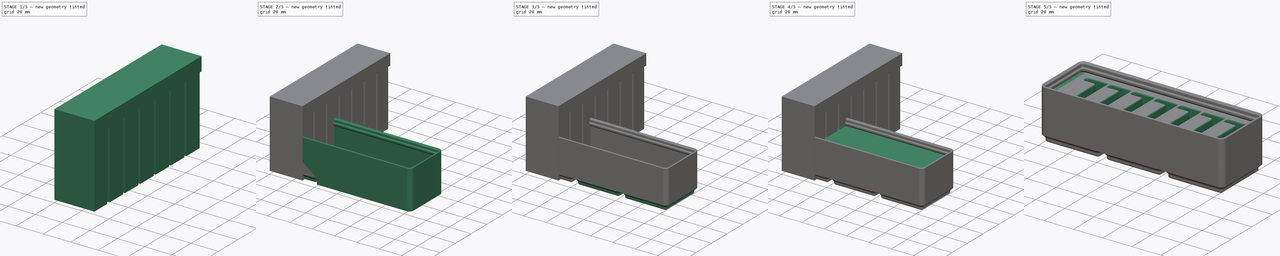
[diagram: build sequence overview — one tinted view per stage of 5, left to right]
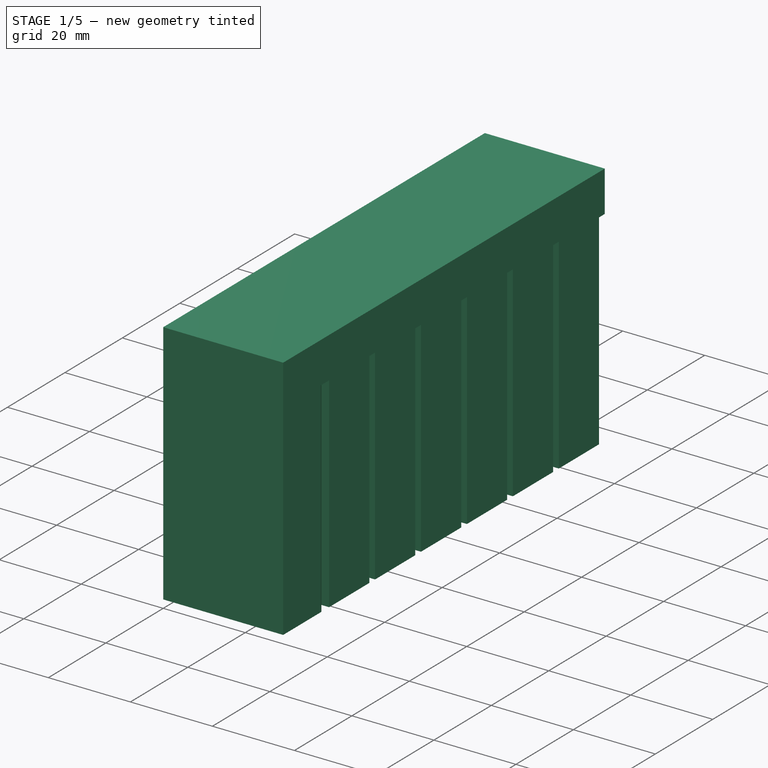
[diagram: stage 1 of 5 — iso view after this stage's code; geometry added in this stage tinted green]
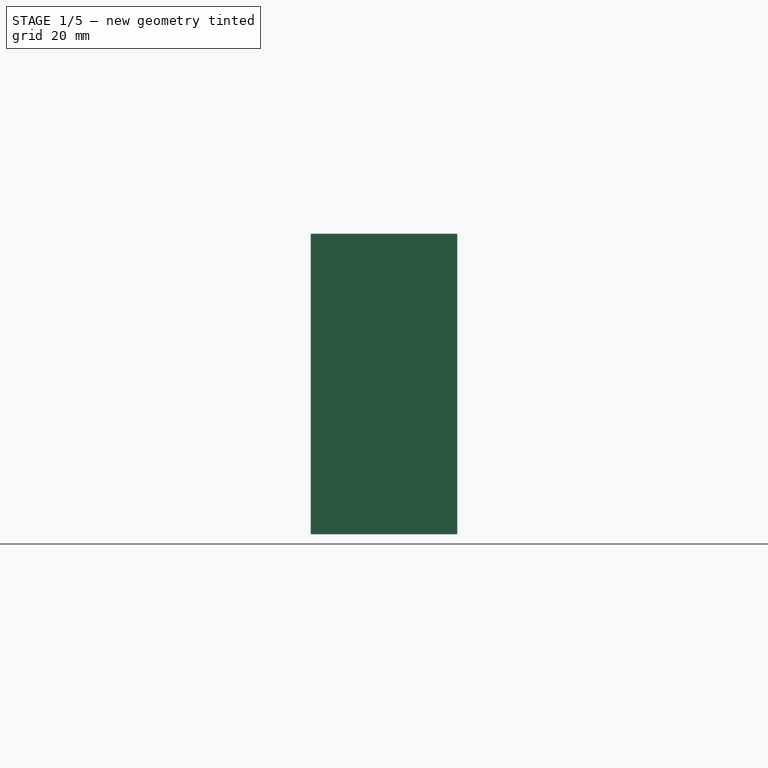
[diagram: stage 1 of 5 — front view after this stage's code; geometry added in this stage tinted green]
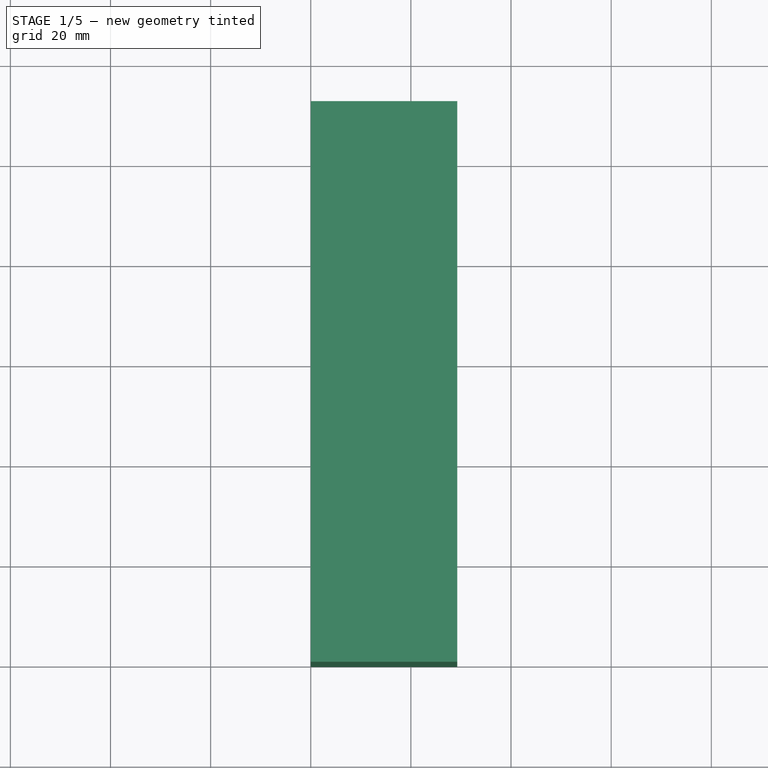
[diagram: stage 1 of 5 — top view after this stage's code; geometry added in this stage tinted green]
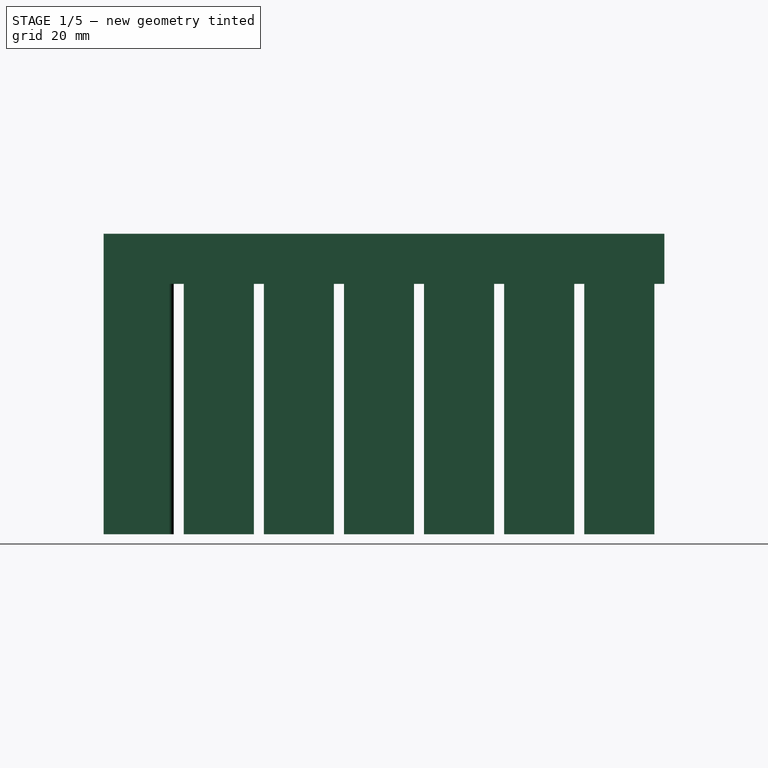
[diagram: stage 1 of 5 — right view after this stage's code; geometry added in this stage tinted green]
FCSTD DOCUMENT  (FreeCAD 0.21R33771 (Git))
Label: ESP32
License: Creative Commons Attribution
LicenseURL: http://creativecommons.org/licenses/by/4.0/
objects: Sketcher::SketchObject×17, PartDesign::Pad×10, PartDesign::LinearPattern×3, PartDesign::Fillet×3, PartDesign::Pocket×2, PartDesign::Hole×2, PartDesign::MultiTransform×2, PartDesign::Body×2, App::FeaturePython×1, PartDesign::AdditivePipe×1, PartDesign::Plane×1, PartDesign::SubtractiveLoft×1, PartDesign::Boolean×1
note: 64 computed .brp shape members not serialized (recipe doc carries the construction recipe); baked Part::Feature solids carry a one-line shape summary decoded from their .brp

FEATURE [Sketcher::SketchObject] Sketch018
  FullyConstrained = true
  MapMode = 5
  Support = -> [XY_Plane]
  sketch-geometry (8):
    g0: LineSegment StartX=0 StartY=0 StartZ=0 EndX=0 EndY=14 EndZ=0
    g1: LineSegment StartX=0 StartY=14 StartZ=0 EndX=3.75 EndY=14 EndZ=0
    g2: LineSegment StartX=3.75 StartY=14 StartZ=0 EndX=3.75 EndY=5.3 EndZ=0
    g3: LineSegment StartX=3.75 StartY=5.3 StartZ=0 EndX=25.5 EndY=5.3 EndZ=0
    g4: LineSegment StartX=25.5 StartY=5.3 StartZ=0 EndX=25.5 EndY=14 EndZ=0
    g5: LineSegment StartX=25.5 StartY=14 StartZ=0 EndX=29.25 EndY=14 EndZ=0
    g6: LineSegment StartX=29.25 StartY=14 StartZ=0 EndX=29.25 EndY=0 EndZ=0
    g7: LineSegment StartX=29.25 StartY=0 StartZ=0 EndX=0 EndY=0 EndZ=0
  constraints (23):
    c: Coincident(g-1,g0)
    c: PointOnObject(g0,g-2)
    c: Coincident(g0,g1)
    c: Horizontal(g1)
    c: Coincident(g1,g2)
    c: Vertical(g2)
    c: Coincident(g2,g3)
    c: Horizontal(g3)
    c: Coincident(g3,g4)
    c: Vertical(g4)
    c: Coincident(g4,g5)
    c: Horizontal(g5)
    c: Coincident(g5,g6)
    c: PointOnObject(g6,g-1)
    c: Vertical(g6)
    c: Coincident(g6,g7)
    c: Coincident(g7,g0)
    c: Equal(g6,g0)
    c: Equal(g5,g1)
    c: DistanceY(g6,g3) = 5.3
    c: DistanceX(g5,g5) = 3.75
    c: DistanceX(g7,g7) = 29.25
    c: DistanceY(g6,g6) = 14
FEATURE [PartDesign::Pad] Pad007
  Direction = (0,0,1)
  Length = 50
  Length2 = 10
  Profile = -> Sketch018
  ReferenceAxis = -> Sketch018 [N_Axis]
  Type = 0
FEATURE [PartDesign::Fillet] Fillet
  Base = -> Pad007 [Edge8,Edge11,Edge14,Edge17,Edge5,Edge2]
  BaseFeature = -> Pad007
  Radius = 1
  SupportTransform = false
  UseAllEdges = false
FEATURE [Sketcher::SketchObject] Sketch019
  ExternalGeometry = -> [Fillet]
  FullyConstrained = true
  MapMode = 5
  Placement = pos=(0,0,50) rot=(0,0,1;0rad)
  Support = -> [Fillet]
  sketch-geometry (5):
    g0: LineSegment StartX=0 StartY=0 StartZ=0 EndX=29.25 EndY=0 EndZ=0
    g1: LineSegment StartX=29.25 StartY=0 StartZ=0 EndX=29.25 EndY=112 EndZ=0
    g2: LineSegment StartX=29.25 StartY=112 StartZ=0 EndX=0 EndY=112 EndZ=0
    g3: LineSegment StartX=0 StartY=112 StartZ=0 EndX=0 EndY=0 EndZ=0
    g4: LineSegment StartX=0 StartY=18 StartZ=0 EndX=29.25 EndY=18 EndZ=0
  constraints (15):
    c: Coincident(g0,g1)
    c: Coincident(g1,g2)
    c: Coincident(g2,g3)
    c: Coincident(g3,g0)
    c: Horizontal(g2)
    c: Vertical(g1)
    c: Vertical(g3)
    c: Coincident(g0,g-1)
    c: Coincident(g0,g-3)
    c: DistanceY(g0,g-4) = 14
    c: PointOnObject(g4,g3)
    c: PointOnObject(g4,g1)
    c: Horizontal(g4)
    c: DistanceY(g0,g4) = 18
    c: DistanceY(g1,g1) = 112
FEATURE [PartDesign::Pad] Pad008
  BaseFeature = -> Fillet
  Direction = (0,0,1)
  Length = 10
  Length2 = 10
  Profile = -> Sketch019
  ReferenceAxis = -> Sketch019 [N_Axis]
  Type = 0
FEATURE [Sketcher::SketchObject] Sketch020
  ExternalGeometry = -> [Pad008]
  FullyConstrained = true
  MapMode = 5
  Placement = pos=(0,0,50) rot=(1,0,0;3.14159rad)
  Support = -> [Pad008]
  sketch-geometry (61):
    g0: LineSegment StartX=4e-16 StartY=-16 StartZ=0 EndX=29.25 EndY=-16 EndZ=0
    g1: LineSegment StartX=0 StartY=-32 StartZ=0 EndX=29.25 EndY=-32 EndZ=0
    g2: LineSegment StartX=0 StartY=-48 StartZ=0 EndX=29.25 EndY=-48 EndZ=0
    g3: LineSegment StartX=0 StartY=-64 StartZ=0 EndX=29.25 EndY=-64 EndZ=0
    g4: LineSegment StartX=0 StartY=-80 StartZ=0 EndX=29.25 EndY=-80 EndZ=0
    g5: LineSegment StartX=0 StartY=-96 StartZ=0 EndX=29.25 EndY=-96 EndZ=0
    g6: LineSegment StartX=0 StartY=0 StartZ=0 EndX=4e-16 EndY=-16 EndZ=0
    g7: LineSegment StartX=4e-16 StartY=-16 StartZ=0 EndX=0 EndY=-32 EndZ=0
    g8: LineSegment StartX=0 StartY=-32 StartZ=0 EndX=0 EndY=-48 EndZ=0
    g9: LineSegment StartX=0 StartY=-48 StartZ=0 EndX=0 EndY=-64 EndZ=0
    g10: LineSegment StartX=0 StartY=-64 StartZ=0 EndX=0 EndY=-80 EndZ=0
    g11: LineSegment StartX=0 StartY=-80 StartZ=0 EndX=0 EndY=-96 EndZ=0
    g12: LineSegment StartX=0 StartY=-96 StartZ=0 EndX=0 EndY=-112 EndZ=0
    g13: LineSegment StartX=0 StartY=-32 StartZ=0 EndX=29.25 EndY=-32 EndZ=0
    g14: LineSegment StartX=29.25 StartY=-32 StartZ=0 EndX=29.25 EndY=-46 EndZ=0
    g15: LineSegment StartX=29.25 StartY=-46 StartZ=0 EndX=25.5 EndY=-46 EndZ=0
    g16: LineSegment StartX=25.5 StartY=-46 StartZ=0 EndX=25.5 EndY=-37.3 EndZ=0
    g17: LineSegment StartX=25.5 StartY=-37.3 StartZ=0 EndX=3.75 EndY=-37.3 EndZ=0
    g18: LineSegment StartX=3.75 StartY=-37.3 StartZ=0 EndX=3.75 EndY=-46 EndZ=0
    g19: LineSegment StartX=3.75 StartY=-46 StartZ=0 EndX=0 EndY=-46 EndZ=0
    g20: LineSegment StartX=0 StartY=-46 StartZ=0 EndX=0 EndY=-32 EndZ=0
    g21: LineSegment StartX=0 StartY=-64 StartZ=0 EndX=29.25 EndY=-64 EndZ=0
    g22: LineSegment StartX=29.25 StartY=-64 StartZ=0 EndX=29.25 EndY=-78 EndZ=0
    g23: LineSegment StartX=29.25 StartY=-78 StartZ=0 EndX=25.5 EndY=-78 EndZ=0
    g24: LineSegment StartX=25.5 StartY=-78 StartZ=0 EndX=25.5 EndY=-69.3 EndZ=0
    g25: LineSegment StartX=25.5 StartY=-69.3 StartZ=0 EndX=3.75 EndY=-69.3 EndZ=0
    g26: LineSegment StartX=3.75 StartY=-69.3 StartZ=0 EndX=3.75 EndY=-78 EndZ=0
    g27: LineSegment StartX=3.75 StartY=-78 StartZ=0 EndX=0 EndY=-78 EndZ=0
    g28: LineSegment StartX=0 StartY=-78 StartZ=0 EndX=0 EndY=-64 EndZ=0
    g29: LineSegment StartX=0 StartY=-48 StartZ=0 EndX=29.25 EndY=-48 EndZ=0
    g30: LineSegment StartX=29.25 StartY=-48 StartZ=0 EndX=29.25 EndY=-62 EndZ=0
    g31: LineSegment StartX=29.25 StartY=-62 StartZ=0 EndX=25.5 EndY=-62 EndZ=0
    g32: LineSegment StartX=25.5 StartY=-62 StartZ=0 EndX=25.5 EndY=-53.3 EndZ=0
    g33: LineSegment StartX=25.5 StartY=-53.3 StartZ=0 EndX=3.75 EndY=-53.3 EndZ=0
    g34: LineSegment StartX=3.75 StartY=-53.3 StartZ=0 EndX=3.75 EndY=-62 EndZ=0
    g35: LineSegment StartX=3.75 StartY=-62 StartZ=0 EndX=0 EndY=-62 EndZ=0
    g36: LineSegment StartX=0 StartY=-62 StartZ=0 EndX=0 EndY=-48 EndZ=0
    g37: LineSegment StartX=4e-16 StartY=-16 StartZ=0 EndX=29.25 EndY=-16 EndZ=0
    g38: LineSegment StartX=29.25 StartY=-16 StartZ=0 EndX=29.25 EndY=-30 EndZ=0
    g39: LineSegment StartX=29.25 StartY=-30 StartZ=0 EndX=25.5 EndY=-30 EndZ=0
    g40: LineSegment StartX=25.5 StartY=-30 StartZ=0 EndX=25.5 EndY=-21.3 EndZ=0
    g41: LineSegment StartX=25.5 StartY=-21.3 StartZ=0 EndX=3.75 EndY=-21.3 EndZ=0
    g42: LineSegment StartX=3.75 StartY=-21.3 StartZ=0 EndX=3.75 EndY=-30 EndZ=0
    g43: LineSegment StartX=3.75 StartY=-30 StartZ=0 EndX=4e-16 EndY=-30 EndZ=0
    g44: LineSegment StartX=4e-16 StartY=-30 StartZ=0 EndX=4e-16 EndY=-16 EndZ=0
    g45: LineSegment StartX=0 StartY=-80 StartZ=0 EndX=29.25 EndY=-80 EndZ=0
    g46: LineSegment StartX=29.25 StartY=-80 StartZ=0 EndX=29.25 EndY=-94 EndZ=0
    g47: LineSegment StartX=29.25 StartY=-94 StartZ=0 EndX=25.5 EndY=-94 EndZ=0
    g48: LineSegment StartX=25.5 StartY=-94 StartZ=0 EndX=25.5 EndY=-85.3 EndZ=0
    g49: LineSegment StartX=25.5 StartY=-85.3 StartZ=0 EndX=3.75 EndY=-85.3 EndZ=0
    g50: LineSegment StartX=3.75 StartY=-85.3 StartZ=0 EndX=3.75 EndY=-94 EndZ=0
    g51: LineSegment StartX=3.75 StartY=-94 StartZ=0 EndX=0 EndY=-94 EndZ=0
    g52: LineSegment StartX=0 StartY=-94 StartZ=0 EndX=0 EndY=-80 EndZ=0
    g53: LineSegment StartX=0 StartY=-96 StartZ=0 EndX=29.25 EndY=-96 EndZ=0
    g54: LineSegment StartX=29.25 StartY=-96 StartZ=0 EndX=29.25 EndY=-110 EndZ=0
    g55: LineSegment StartX=29.25 StartY=-110 StartZ=0 EndX=25.5 EndY=-110 EndZ=0
    g56: LineSegment StartX=25.5 StartY=-110 StartZ=0 EndX=25.5 EndY=-101.3 EndZ=0
    g57: LineSegment StartX=25.5 StartY=-101.3 StartZ=0 EndX=3.75 EndY=-101.3 EndZ=0
    g58: LineSegment StartX=3.75 StartY=-101.3 StartZ=0 EndX=3.75 EndY=-110 EndZ=0
    g59: LineSegment StartX=3.75 StartY=-110 StartZ=0 EndX=0 EndY=-110 EndZ=0
    g60: LineSegment StartX=0 StartY=-110 StartZ=0 EndX=0 EndY=-96 EndZ=0
  constraints (173):
    c: PointOnObject(g0,g-3)
    c: Horizontal(g0)
    c: PointOnObject(g1,g-4)
    c: PointOnObject(g1,g-3)
    c: Horizontal(g1)
    c: PointOnObject(g2,g-4)
    c: PointOnObject(g2,g-3)
    c: Horizontal(g2)
    c: PointOnObject(g3,g-4)
    c: PointOnObject(g3,g-3)
    c: Horizontal(g3)
    c: PointOnObject(g4,g-4)
    c: PointOnObject(g4,g-3)
    c: Horizontal(g4)
    c: PointOnObject(g5,g-4)
    c: PointOnObject(g5,g-3)
    c: Horizontal(g5)
    c: Coincident(g-12,g6)
    c: Coincident(g6,g0)
    c: Tangent(g6,g-2)
    c: Coincident(g6,g7)
    c: Coincident(g7,g1)
    c: Coincident(g7,g8)
    c: Coincident(g8,g2)
    c: Coincident(g8,g9)
    c: Coincident(g9,g3)
    c: Coincident(g9,g10)
    c: Coincident(g10,g4)
    c: Coincident(g10,g11)
    c: Coincident(g11,g5)
    c: Coincident(g11,g12)
    c: Coincident(g12,g-5)
    c: Equal(g12,g11)
    c: Equal(g11,g10)
    c: Equal(g10,g9)
    c: Equal(g9,g8)
    c: Equal(g8,g7)
    c: Equal(g7,g6)
    c: Coincident(g13,g14)
    c: Vertical(g14)
    c: Coincident(g14,g15)
    c: Horizontal(g15)
    c: Coincident(g15,g16)
    c: Coincident(g16,g17)
    c: Horizontal(g17)
    c: Coincident(g17,g18)
    c: Vertical(g18)
    c: Coincident(g18,g19)
    c: Horizontal(g19)
    c: Coincident(g19,g20)
    c: Vertical(g20)
    c: Coincident(g13,g20)
    c: Vertical(g16)
    c: Equal(g15,g19)
    c: Equal(g18,g16)
    c: DistanceY(g20,g20) = 14
    c: DistanceY(g-16,g-13) = 14
    c: DistanceX(g-15,g-16) = 3.75
    c: DistanceX(g19,g19) = 3.75
    c: DistanceY(g-14,g-13) = 5.3
    c: DistanceY(g17,g13) = 5.3
    c: Coincident(g21,g22)
    c: Vertical(g22)
    c: Coincident(g22,g23)
    c: Horizontal(g23)
    c: Coincident(g23,g24)
    c: Coincident(g24,g25)
    c: Horizontal(g25)
    c: Coincident(g25,g26)
    c: Vertical(g26)
    c: Coincident(g26,g27)
    c: Horizontal(g27)
    c: Coincident(g27,g28)
    c: Vertical(g28)
    c: Coincident(g21,g28)
    c: Vertical(g24)
    c: Equal(g23,g27)
    c: Equal(g26,g24)
    c: Equal(g20,g28) = 14
    c: Equal(g19,g27) = 3.25
    c: DistanceY(g25,g21) = 5.3
    c: Coincident(g29,g30)
    c: Vertical(g30)
    c: Coincident(g30,g31)
    c: Horizontal(g31)
    c: Coincident(g31,g32)
    c: Coincident(g32,g33)
    c: Horizontal(g33)
    c: Coincident(g33,g34)
    c: Vertical(g34)
    c: Coincident(g34,g35)
    c: Horizontal(g35)
    c: Coincident(g35,g36)
    c: Vertical(g36)
    c: Coincident(g29,g36)
    c: Vertical(g32)
    c: Equal(g31,g35)
    c: Equal(g34,g32)
    c: Equal(g20,g36) = 14
    c: Equal(g19,g35) = 3.25
    c: DistanceY(g33,g29) = 5.3
    c: Coincident(g37,g38)
    c: Vertical(g38)
    c: Coincident(g38,g39)
    c: Horizontal(g39)
    c: Coincident(g39,g40)
    c: Coincident(g40,g41)
    c: Horizontal(g41)
    c: Coincident(g41,g42)
    c: Vertical(g42)
    c: Coincident(g42,g43)
    c: Horizontal(g43)
    c: Coincident(g43,g44)
    c: Vertical(g44)
    c: Coincident(g37,g44)
    c: Vertical(g40)
    c: Equal(g39,g43)
    c: Equal(g42,g40)
    c: Equal(g36,g44) = 14
    c: Equal(g35,g43) = 3.25
    c: DistanceY(g41,g37) = 5.3
    c: Coincident(g45,g46)
    c: Vertical(g46)
    c: Coincident(g46,g47)
    c: Horizontal(g47)
    c: Coincident(g47,g48)
    c: Coincident(g48,g49)
    c: Horizontal(g49)
    c: Coincident(g49,g50)
    c: Vertical(g50)
    c: Coincident(g50,g51)
    c: Horizontal(g51)
    c: Coincident(g51,g52)
    c: Vertical(g52)
    c: Coincident(g45,g52)
    c: Vertical(g48)
    c: Equal(g47,g51)
    c: Equal(g50,g48)
    c: Equal(g20,g52) = 14
    c: Equal(g19,g51) = 3.25
    c: DistanceY(g49,g45) = 5.3
    c: Coincident(g53,g54)
    c: Vertical(g54)
    c: Coincident(g54,g55)
    c: Horizontal(g55)
    c: Coincident(g55,g56)
    c: Coincident(g56,g57)
    c: Horizontal(g57)
    c: Coincident(g57,g58)
    c: Vertical(g58)
    c: Coincident(g58,g59)
    c: Horizontal(g59)
    c: Coincident(g59,g60)
    c: Vertical(g60)
    c: Coincident(g53,g60)
    c: Vertical(g56)
    c: Equal(g55,g59)
    c: Equal(g58,g56)
    c: Equal(g52,g60) = 14
    c: Equal(g51,g59) = 3.25
    c: DistanceY(g57,g53) = 5.3
    c: Coincident(g53,g5)
    c: Coincident(g53,g5)
    c: Coincident(g37,g0)
    c: Coincident(g37,g0)
    c: Coincident(g1,g13)
    c: Coincident(g13,g1)
    c: Coincident(g29,g2)
    c: Coincident(g29,g2)
    c: Coincident(g21,g3)
    c: Coincident(g21,g3)
    c: Coincident(g45,g4)
    c: Coincident(g45,g4)
FEATURE [PartDesign::Pad] Pad009
  BaseFeature = -> Pad008
  Direction = (0,0,-1)
  Length = 10
  Length2 = 10
  Profile = -> Sketch020
  ReferenceAxis = -> Sketch020 [N_Axis]
  Type = 3
  UpToFace = -> Pad008 [Face2]
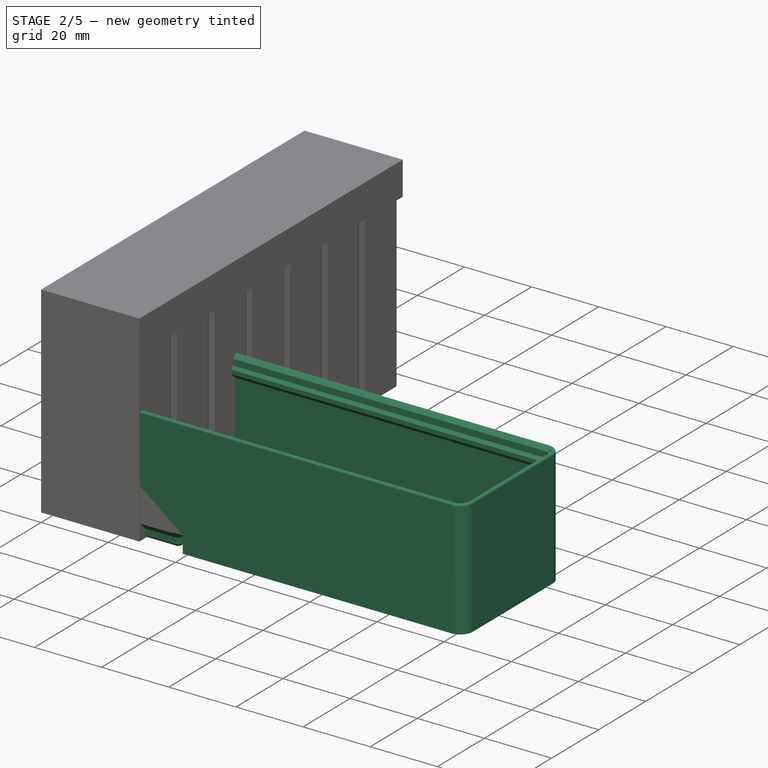
[diagram: stage 2 of 5 — iso view after this stage's code; geometry added in this stage tinted green]
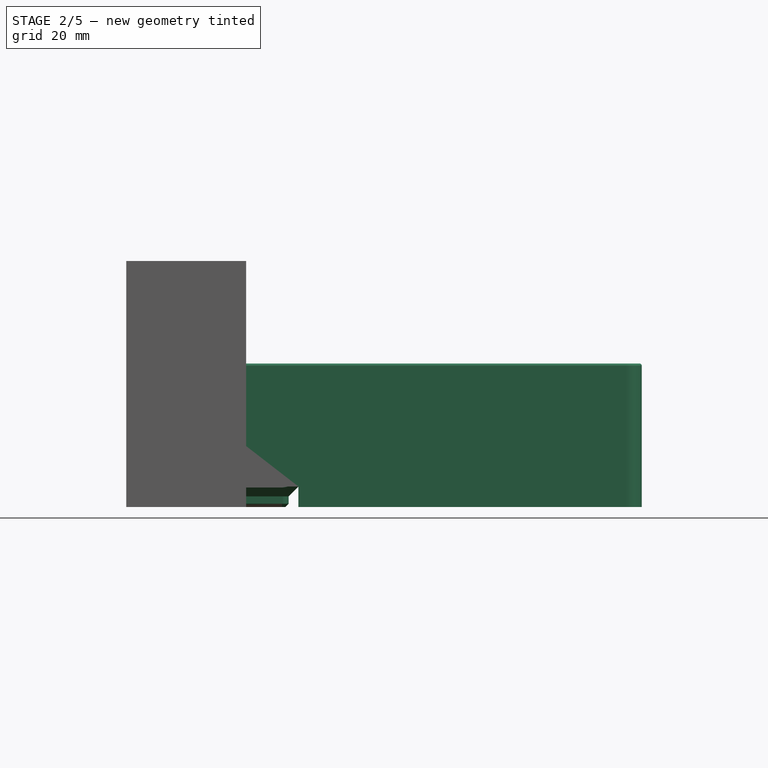
[diagram: stage 2 of 5 — front view after this stage's code; geometry added in this stage tinted green]
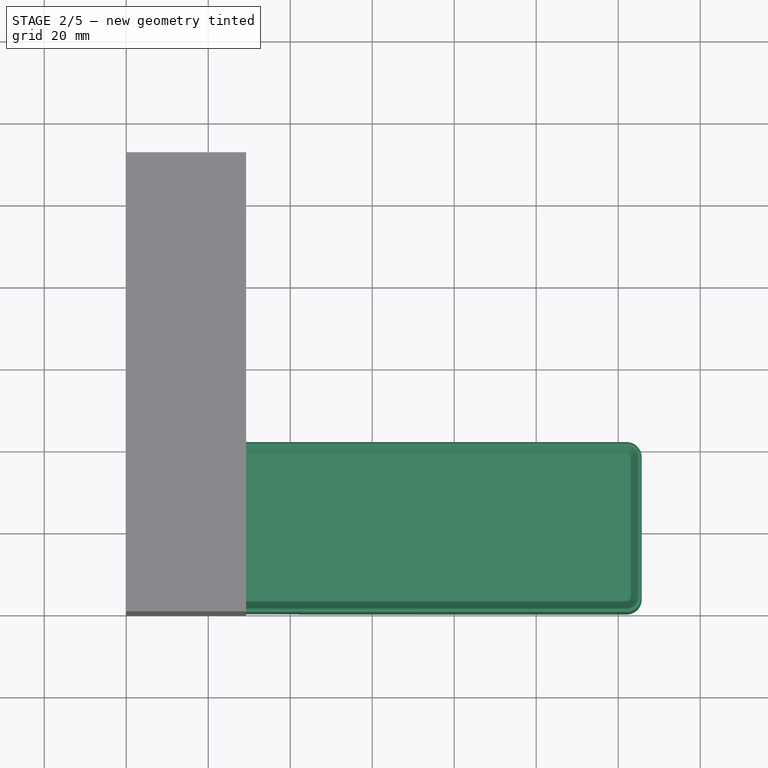
[diagram: stage 2 of 5 — top view after this stage's code; geometry added in this stage tinted green]
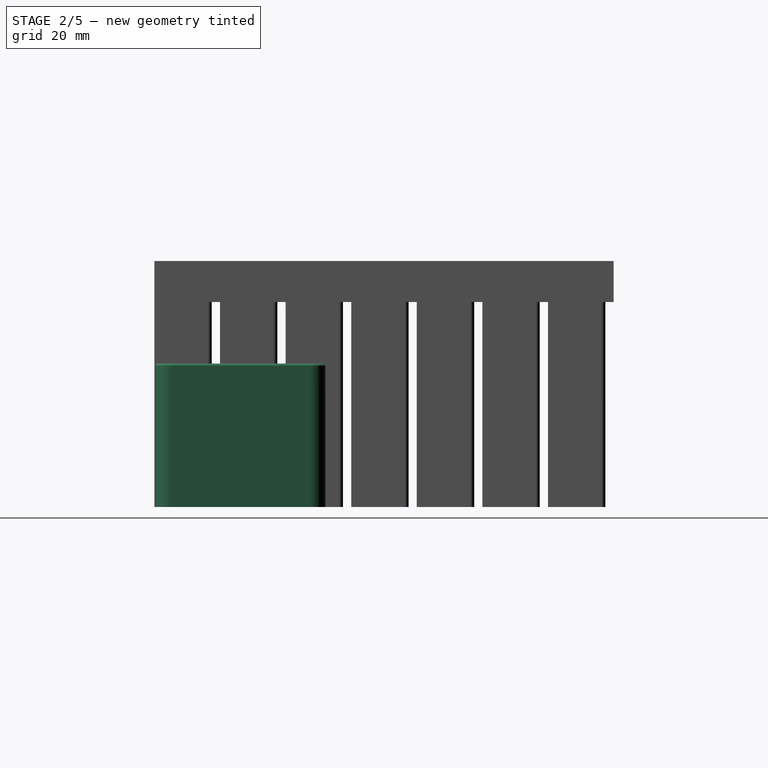
[diagram: stage 2 of 5 — right view after this stage's code; geometry added in this stage tinted green]
FEATURE [App::FeaturePython] dd  # WARN: FeaturePython — macro-defined, semantics opaque (R4)
  DynamicData = Created with DynamicData (v2.46) workbench. | This is a simple container object built | for holding custom properties.
  ddBase_height = 6.2
  ddBase_screw_diameter = 3
  ddBase_screw_hole_depth = 1e-06
  ddBottom_chamfer = 0.8
  ddCell_center = 21
  ddClearance = 0.25
  ddColumns = 3
  ddCorner_fillet = 4
  ddDividers = 0
  ddFrame_height = 5
  ddFrame_width = 2.4
  ddGrid_size = 42
  ddHeight = 5
  ddInner_scoop_radius = 9.5
  ddLabel_full_length = false
  ddLabel_width = 12
  ddMagnet_diameter = 6.5
  ddMagnet_inset = 8
  ddMagnet_thickness = 2.4
  ddMinimum_height = 20.8015
  ddRows = 1
  ddSet_screw_holes = false
  ddStorage_height = 35
  ddStorage_height_unit = 7
  ddTab_angle = 35
  ddTab_height = 10.9603
  ddTotal_dividers = 2
  ddTotal_length = 42
  ddTotal_width = 126
  ddUpper_rim_bottom_chamfer = 1.5
  ddUpper_rim_height = 4.85147
  ddWall_thickness = 1.2
  expr: ddBase_height = ddFrame_height + ddWall_thickness
  expr: ddBase_screw_hole_depth = max(ddSet_screw_holes * (ddFrame_height - ddMagnet_thickness); 1e-06 mm)
  expr: ddCell_center = ddGrid_size / 2
  expr: ddMinimum_height = max(ddBase_height + ddInner_scoop_radius + ddUpper_rim_height + ddClearance; ddFrame_height + ddTab_height + ddUpper_rim_height - ddWall_thickness + ddClearance)
  expr: ddStorage_height = max(ddStorage_height_unit * ddHeight; ceil(ddMinimum_height / ddStorage_height_unit) * ddStorage_height_unit)
  expr: ddStorage_height_unit = ddGrid_size / 6
  expr: ddTab_height = (ddWall_thickness / (2 * tan(ddTab_angle / 2)) + ddLabel_width + ddClearance + ddUpper_rim_bottom_chamfer) * tan(ddTab_angle)
  expr: ddTotal_dividers = max(ddDividers + 2; 2)
  expr: ddTotal_length = ddRows * ddGrid_size
  expr: ddTotal_width = ddColumns * ddGrid_size
  expr: ddUpper_rim_bottom_chamfer = ddFrame_width - 2 * ddClearance + ddBottom_chamfer - ddWall_thickness
  expr: ddUpper_rim_height = ddFrame_height - 2 * ddClearance - ddWall_thickness / 2 * (1 / tan(45 / 2) - 1) + ddWall_thickness
FEATURE [Sketcher::SketchObject] Sketch005  label="Sketch_storage_wall_profile"
  AttachmentOffset = pos=(0,0,21) rot=(0,0,1;0rad)
  FullyConstrained = true
  MapMode = 5
  Placement = pos=(21,-4.7e-15,4.7e-15) rot=(0.57735,0.57735,0.57735;2.0944rad)
  Support = -> [YZ_Plane001]
  expr: .AttachmentOffset.Base.z = dd.ddCell_center
  expr: Constraints[15] = dd.ddFrame_height - dd.ddClearance
  expr: Constraints[16] = dd.ddBottom_chamfer
  expr: Constraints[25] = dd.ddWall_thickness
  expr: Constraints[26] = dd.ddWall_thickness
  expr: Constraints[27] = dd.ddStorage_height
  expr: Constraints[45] = dd.ddWall_thickness
  expr: Constraints[47] = dd.ddUpper_rim_height + dd.ddUpper_rim_bottom_chamfer
  expr: Constraints[5] = dd.ddClearance
  expr: Constraints[6] = dd.ddFrame_width - dd.ddClearance
  sketch-geometry (17):
    g0: LineSegment StartX=0.25 StartY=0 StartZ=0 EndX=0.25 EndY=34.4 EndZ=0
    g1: LineSegment StartX=0.25 StartY=34.4 StartZ=0 EndX=0.85 EndY=34.4 EndZ=0
    g2: LineSegment StartX=0.85 StartY=34.4 StartZ=0 EndX=1.27426 EndY=34.8243 EndZ=0
    g3: LineSegment StartX=1.27426 StartY=34.8243 StartZ=0 EndX=2.15 EndY=33.9485 EndZ=0
    g4: LineSegment StartX=2.15 StartY=33.9485 StartZ=0 EndX=0 EndY=36.0985 EndZ=0
    g5: LineSegment StartX=2.15 StartY=33.9485 StartZ=0 EndX=2.15 EndY=32.1485 EndZ=0
    g6: LineSegment StartX=2.15 StartY=32.1485 StartZ=0 EndX=2.95 EndY=31.3485 EndZ=0
    g7: LineSegment StartX=2.95 StartY=31.3485 StartZ=0 EndX=2.95 EndY=30.1485 EndZ=0
    g8: LineSegment StartX=2.95 StartY=30.1485 StartZ=0 EndX=1.45 EndY=28.6485 EndZ=0
    g9: LineSegment StartX=1.45 StartY=28.6485 StartZ=0 EndX=1.45 EndY=-6.35147 EndZ=0
    g10: LineSegment StartX=1.45 StartY=-6.35147 StartZ=0 EndX=0.25 EndY=-6.35147 EndZ=0
    g11: LineSegment StartX=0.85 StartY=34.4 StartZ=0 EndX=0.85 EndY=35 EndZ=0
    g12: LineSegment StartX=1.45 StartY=28.6485 StartZ=0 EndX=1.45 EndY=35 EndZ=0
    g13: LineSegment StartX=0.85 StartY=35 StartZ=0 EndX=1.45 EndY=35 EndZ=0
    g14: LineSegment StartX=0.25 StartY=-6.35147 StartZ=0 EndX=0.25 EndY=0 EndZ=0
    g15: ArcOfCircle CenterX=0.85 CenterY=34.4 CenterZ=0 NormalX=0 NormalY=0 NormalZ=1 AngleXU=0 Radius=0.6 StartAngle=1.5708 EndAngle=3.14159
    g16: ArcOfCircle CenterX=0.85 CenterY=34.4 CenterZ=0 NormalX=0 NormalY=0 NormalZ=1 AngleXU=0 Radius=0.6 StartAngle=0.785398 EndAngle=1.5708
  constraints (48):
    c: Vertical(g0)
    c: Coincident(g1,g0)
    c: Horizontal(g1)
    c: Coincident(g2,g1)
    c: Coincident(g3,g2)
    c: DistanceX(g-1,g0) = 0.25
    c: DistanceX(g-1,g3) = 2.15
    c: Coincident(g4,g3)
    c: PointOnObject(g4,g-2)
    c: PointOnObject(g2,g4)
    c: Angle(g-2,g4) = 0.785398
    c: Coincident(g5,g3)
    c: Vertical(g5)
    c: Coincident(g6,g5)
    c: Parallel(g4,g6)
    c: DistanceY(g6,g4) = 4.75
    c: DistanceX(g5,g6) = 0.8
    c: Coincident(g7,g6)
    c: Vertical(g7)
    c: Coincident(g8,g7)
    c: Coincident(g9,g8)
    c: Vertical(g9)
    c: Coincident(g10,g9)
    c: Horizontal(g10)
    c: Perpendicular(g8,g4)
    c: DistanceY(g7,g6) = 1.2
    c: DistanceX(g0,g9) = 1.2
    c: DistanceY(g-1,g11) = 35
    c: Coincident(g12,g8)
    c: Vertical(g12)
    c: Coincident(g13,g11)
    c: Coincident(g13,g12)
    c: Horizontal(g13)
    c: PointOnObject(g0,g-1)
    c: Coincident(g14,g10)
    c: Coincident(g14,g0)
    c: Vertical(g14)
    c: Vertical(g11)
    c: Coincident(g15,g1)
    c: Coincident(g15,g0)
    c: Coincident(g15,g11)
    c: Coincident(g16,g15)
    c: Coincident(g16,g15)
    c: Coincident(g16,g3)
    c: Coincident(g11,g15)
    c: Diameter(g15) = 1.2
    c: Angle(g2,g11) = 0.785398
    c: DistanceY(g14,g14) = 6.35147
FEATURE [Sketcher::SketchObject] Sketch006  label="Sketch_storage_wall_path"
  FullyConstrained = true
  MapMode = 5
  Support = -> [XY_Plane001]
  expr: Constraints[21] = dd.ddCorner_fillet
  expr: Constraints[22] = dd.ddTotal_width
  expr: Constraints[23] = dd.ddTotal_length
  sketch-geometry (10):
    g0: ArcOfCircle CenterX=4 CenterY=4 CenterZ=0 NormalX=0 NormalY=0 NormalZ=1 AngleXU=0 Radius=4 StartAngle=3.14159 EndAngle=4.71239
    g1: LineSegment StartX=0 StartY=4 StartZ=0 EndX=0 EndY=38 EndZ=0
    g2: ArcOfCircle CenterX=4 CenterY=38 CenterZ=0 NormalX=0 NormalY=0 NormalZ=1 AngleXU=0 Radius=4 StartAngle=1.5708 EndAngle=3.14159
    g3: LineSegment StartX=4 StartY=42 StartZ=0 EndX=122 EndY=42 EndZ=0
    g4: ArcOfCircle CenterX=122 CenterY=38 CenterZ=0 NormalX=0 NormalY=0 NormalZ=1 AngleXU=0 Radius=4 StartAngle=3e-16 EndAngle=1.5708
    g5: LineSegment StartX=126 StartY=38 StartZ=0 EndX=126 EndY=4 EndZ=0
    g6: ArcOfCircle CenterX=122 CenterY=4 CenterZ=0 NormalX=0 NormalY=0 NormalZ=1 AngleXU=0 Radius=4 StartAngle=4.71239 EndAngle=6.28319
    g7: LineSegment StartX=122 StartY=0 StartZ=0 EndX=4 EndY=0 EndZ=0
    g8: GeomPoint X=0 Y=0 Z=0
    g9: GeomPoint X=126 Y=42 Z=0
  constraints (24):
    c: Tangent(g0,g1) = 1.5708
    c: Tangent(g1,g2) = 1.5708
    c: Tangent(g2,g3) = 1.5708
    c: Tangent(g3,g4) = 1.5708
    c: Tangent(g4,g5) = 1.5708
    c: Tangent(g5,g6) = 1.5708
    c: Tangent(g6,g7) = 1.5708
    c: Tangent(g7,g0) = 1.5708
    c: Horizontal(g3)
    c: Horizontal(g7)
    c: Vertical(g1)
    c: Vertical(g5)
    c: Equal(g0,g2)
    c: Equal(g2,g4)
    c: Equal(g4,g6)
    c: PointOnObject(g8,g1)
    c: PointOnObject(g8,g7)
    c: PointOnObject(g9,g3)
    c: PointOnObject(g9,g5)
    c: PointOnObject(g8,g-2)
    c: PointOnObject(g0,g-1)
    c: Radius(g0) = 4
    c: DistanceX(g0,g5) = 126
    c: DistanceY(g0,g2) = 42
FEATURE [PartDesign::AdditivePipe] AdditivePipe  label="AdditivePipe_storage_wall"
  AuxilleryCurvelinear = true
  AuxillerySpineTangent = false
  Binormal = (0,0,0)
  Mode = 0
  Placement = pos=(0,0,0) rot=(0.57735,0.57735,0.57735;2.0944rad)
  Profile = -> Sketch005
  Refine = true
  Spine = -> Sketch006
  SpineTangent = false
  Transformation = 0
  Transition = 0
FEATURE [PartDesign::Plane] DatumPlane  label="DatumPlane_frame_height"
  AttachmentOffset = pos=(0,0,5) rot=(0,0,1;0rad)
  Length = 60
  MapMode = 5
  Placement = pos=(0,0,5) rot=(0,0,1;0rad)
  ResizeMode = 0
  Support = -> [XY_Plane001]
  Width = 60
  expr: .AttachmentOffset.Base.z = dd.ddFrame_height
FEATURE [Sketcher::SketchObject] Sketch007  label="Sketch_trim_wall_bottom"
  FullyConstrained = true
  MapMode = 5
  Placement = pos=(0,0,5) rot=(0,0,1;0rad)
  Support = -> [DatumPlane]
  expr: Constraints[7] = dd.ddTotal_width + 10 mm
  expr: Constraints[8] = dd.ddTotal_length + 10 mm
  sketch-geometry (4):
    g0: LineSegment StartX=-5 StartY=-5 StartZ=0 EndX=131 EndY=-5 EndZ=0
    g1: LineSegment StartX=131 StartY=-5 StartZ=0 EndX=131 EndY=47 EndZ=0
    g2: LineSegment StartX=131 StartY=47 StartZ=0 EndX=-5 EndY=47 EndZ=0
    g3: LineSegment StartX=-5 StartY=47 StartZ=0 EndX=-5 EndY=-5 EndZ=0
  constraints (12):
    c: Coincident(g0,g1)
    c: Coincident(g1,g2)
    c: Coincident(g2,g3)
    c: Horizontal(g0)
    c: Horizontal(g2)
    c: Vertical(g1)
    c: Vertical(g3)
    c: DistanceX(g0,g0) = 136
    c: DistanceY(g0,g2) = 52
    c: Coincident(g3,g0)
    c: DistanceX(g0,g-1) = 5
    c: DistanceY(g0,g-1) = 5
FEATURE [PartDesign::Pocket] Pocket  label="Pocket_trim_wall_bottom"
  BaseFeature = -> AdditivePipe
  Direction = (0,0,-1)
  Length = 5
  Length2 = 5
  Placement = pos=(0,0,0) rot=(0.57735,0.57735,0.57735;2.0944rad)
  Profile = -> Sketch007
  ReferenceAxis = -> Sketch007 [N_Axis]
  Refine = true
  Type = 1
FEATURE [Sketcher::SketchObject] Sketch008  label="Sketch_storage_stock"
  FullyConstrained = true
  MapMode = 5
  Support = -> [XY_Plane001]
  expr: Constraints[19] = dd.ddClearance
  expr: Constraints[20] = dd.ddClearance
  expr: Constraints[21] = dd.ddCorner_fillet
  expr: Constraints[22] = dd.ddTotal_width - 2 * dd.ddCorner_fillet
  expr: Constraints[23] = dd.ddTotal_length - 2 * dd.ddCorner_fillet
  sketch-geometry (10):
    g0: ArcOfCircle CenterX=4 CenterY=4 CenterZ=0 NormalX=0 NormalY=0 NormalZ=1 AngleXU=0 Radius=3.75 StartAngle=3.14159 EndAngle=4.71239
    g1: LineSegment StartX=0.25 StartY=4 StartZ=0 EndX=0.25 EndY=38 EndZ=0
    g2: ArcOfCircle CenterX=4 CenterY=38 CenterZ=0 NormalX=0 NormalY=0 NormalZ=1 AngleXU=0 Radius=3.75 StartAngle=1.5708 EndAngle=3.14159
    g3: LineSegment StartX=4 StartY=41.75 StartZ=0 EndX=122 EndY=41.75 EndZ=0
    g4: ArcOfCircle CenterX=122 CenterY=38 CenterZ=0 NormalX=0 NormalY=0 NormalZ=1 AngleXU=0 Radius=3.75 StartAngle=0 EndAngle=1.5708
    g5: LineSegment StartX=125.75 StartY=38 StartZ=0 EndX=125.75 EndY=4 EndZ=0
    g6: ArcOfCircle CenterX=122 CenterY=4 CenterZ=0 NormalX=0 NormalY=0 NormalZ=1 AngleXU=0 Radius=3.75 StartAngle=4.71239 EndAngle=6.28319
    g7: LineSegment StartX=122 StartY=0.25 StartZ=0 EndX=4 EndY=0.25 EndZ=0
    g8: GeomPoint X=0.25 Y=0.25 Z=0
    g9: GeomPoint X=125.75 Y=41.75 Z=0
  constraints (24):
    c: Tangent(g0,g1) = 1.5708
    c: Tangent(g1,g2) = 1.5708
    c: Tangent(g2,g3) = 1.5708
    c: Tangent(g3,g4) = 1.5708
    c: Tangent(g4,g5) = 1.5708
    c: Tangent(g5,g6) = 1.5708
    c: Tangent(g6,g7) = 1.5708
    c: Tangent(g7,g0) = 1.5708
    c: Horizontal(g3)
    c: Horizontal(g7)
    c: Vertical(g1)
    c: Vertical(g5)
    c: Equal(g0,g2)
    c: Equal(g2,g4)
    c: Equal(g4,g6)
    c: PointOnObject(g8,g1)
    c: PointOnObject(g8,g7)
    c: PointOnObject(g9,g3)
    c: PointOnObject(g9,g5)
    c: DistanceX(g-1,g0) = 0.25
    c: DistanceY(g-1,g0) = 0.25
    c: DistanceX(g-1,g0) = 4
    c: DistanceX(g2,g4) = 118
    c: DistanceY(g6,g4) = 34
FEATURE [PartDesign::Pad] Pad001  label="Pad_storage_stock"
  BaseFeature = -> Pocket
  Direction = (0,0,1)
  Length = 6.2
  Length2 = 10
  Placement = pos=(0,0,0) rot=(0.57735,0.57735,0.57735;2.0944rad)
  Profile = -> Sketch008
  ReferenceAxis = -> Sketch008 [N_Axis]
  Refine = true
  Type = 0
  expr: Length = dd.ddFrame_height + dd.ddWall_thickness
FEATURE [Sketcher::SketchObject] Sketch009  label="Sketch_storage_cell_cutout_top"
  AttachmentOffset = pos=(0,0,5) rot=(0,0,1;0rad)
  FullyConstrained = true
  MapMode = 5
  Placement = pos=(0,0,5) rot=(0,0,1;0rad)
  Support = -> [XY_Plane001]
  expr: .AttachmentOffset.Base.z = dd.ddFrame_height
  expr: Constraints[19] = dd.ddCorner_fillet - 1e-06 mm
  expr: Constraints[20] = dd.ddCorner_fillet
  expr: Constraints[21] = dd.ddCorner_fillet
  expr: Constraints[31] = dd.ddCorner_fillet
  expr: Constraints[32] = dd.ddCorner_fillet
  expr: Constraints[33] = dd.ddGrid_size
  expr: Constraints[34] = dd.ddGrid_size
  sketch-geometry (14):
    g0: ArcOfCircle CenterX=4 CenterY=4 CenterZ=0 NormalX=0 NormalY=0 NormalZ=1 AngleXU=0 Radius=4 StartAngle=3.14159 EndAngle=4.71239
    g1: LineSegment StartX=1e-06 StartY=4 StartZ=0 EndX=1e-06 EndY=38 EndZ=0
    g2: ArcOfCircle CenterX=4 CenterY=38 CenterZ=0 NormalX=0 NormalY=0 NormalZ=1 AngleXU=0 Radius=4 StartAngle=1.5708 EndAngle=3.14159
    g3: LineSegment StartX=4 StartY=42 StartZ=0 EndX=38 EndY=42 EndZ=0
    g4: ArcOfCircle CenterX=38 CenterY=38 CenterZ=0 NormalX=0 NormalY=0 NormalZ=1 AngleXU=0 Radius=4 StartAngle=-9e-16 EndAngle=1.5708
    g5: LineSegment StartX=42 StartY=38 StartZ=0 EndX=42 EndY=4 EndZ=0
    g6: ArcOfCircle CenterX=38 CenterY=4 CenterZ=0 NormalX=0 NormalY=0 NormalZ=1 AngleXU=0 Radius=4 StartAngle=4.71239 EndAngle=6.28319
    g7: LineSegment StartX=38 StartY=1e-06 StartZ=0 EndX=4 EndY=1e-06 EndZ=0
    g8: GeomPoint X=1e-06 Y=1e-06 Z=0
    g9: GeomPoint X=42 Y=42 Z=0
    g10: LineSegment StartX=0 StartY=0 StartZ=0 EndX=42 EndY=0 EndZ=0
    g11: LineSegment StartX=42 StartY=0 StartZ=0 EndX=42 EndY=42 EndZ=0
    g12: LineSegment StartX=42 StartY=42 StartZ=0 EndX=0 EndY=42 EndZ=0
    g13: LineSegment StartX=0 StartY=42 StartZ=0 EndX=0 EndY=0 EndZ=0
  constraints (35):
    c: Tangent(g0,g1) = 1.5708
    c: Tangent(g1,g2) = 1.5708
    c: Tangent(g2,g3) = 1.5708
    c: Tangent(g3,g4) = 1.5708
    c: Tangent(g4,g5) = 1.5708
    c: Tangent(g5,g6) = 1.5708
    c: Tangent(g6,g7) = 1.5708
    c: Tangent(g7,g0) = 1.5708
    c: Horizontal(g3)
    c: Horizontal(g7)
    c: Vertical(g1)
    c: Vertical(g5)
    c: Equal(g0,g2)
    c: Equal(g2,g4)
    c: Equal(g4,g6)
    c: PointOnObject(g8,g1)
    c: PointOnObject(g8,g7)
    c: PointOnObject(g9,g3)
    c: PointOnObject(g9,g5)
    c: Radius(g0) = 4
    c: DistanceX(g-1,g0) = 4
    c: DistanceY(g-1,g0) = 4
    c: Coincident(g10,g11)
    c: Coincident(g11,g12)
    c: Coincident(g12,g13)
    c: Coincident(g13,g10)
    c: Horizontal(g10)
    c: Horizontal(g12)
    c: Vertical(g11)
    c: Vertical(g13)
    c: Coincident(g10,g-1)
    c: DistanceX(g6,g10) = 4
    c: DistanceY(g2,g12) = 4
    c: DistanceX(g10,g10) = 42
    c: DistanceY(g10,g12) = 42
FEATURE [Sketcher::SketchObject] Sketch010  label="Sketch_storage_cell_cutout_top_chamfer"
  AttachmentOffset = pos=(0,0,2.6) rot=(0,0,1;0rad)
  FullyConstrained = true
  MapMode = 5
  Placement = pos=(0,0,2.6) rot=(0,0,1;0rad)
  Support = -> [XY_Plane001]
  expr: .AttachmentOffset.Base.z = dd.ddFrame_height - dd.ddFrame_width
  expr: Constraints[19] = Sketch009.Constraints[19] - dd.ddFrame_width
  expr: Constraints[20] = Sketch009.Constraints[20]
  expr: Constraints[21] = Sketch009.Constraints[21]
  expr: Constraints[31] = Sketch009.Constraints[31]
  expr: Constraints[32] = Sketch009.Constraints[32]
  expr: Constraints[33] = Sketch009.Constraints[33]
  expr: Constraints[34] = Sketch009.Constraints[34]
  sketch-geometry (14):
    g0: ArcOfCircle CenterX=4 CenterY=4 CenterZ=0 NormalX=0 NormalY=0 NormalZ=1 AngleXU=0 Radius=1.6 StartAngle=3.14159 EndAngle=4.71239
    g1: LineSegment StartX=2.4 StartY=4 StartZ=0 EndX=2.4 EndY=38 EndZ=0
    g2: ArcOfCircle CenterX=4 CenterY=38 CenterZ=0 NormalX=0 NormalY=0 NormalZ=1 AngleXU=0 Radius=1.6 StartAngle=1.5708 EndAngle=3.14159
    g3: LineSegment StartX=4 StartY=39.6 StartZ=0 EndX=38 EndY=39.6 EndZ=0
    g4: ArcOfCircle CenterX=38 CenterY=38 CenterZ=0 NormalX=0 NormalY=0 NormalZ=1 AngleXU=0 Radius=1.6 StartAngle=3.81e-14 EndAngle=1.5708
    g5: LineSegment StartX=39.6 StartY=38 StartZ=0 EndX=39.6 EndY=4 EndZ=0
    g6: ArcOfCircle CenterX=38 CenterY=4 CenterZ=0 NormalX=0 NormalY=0 NormalZ=1 AngleXU=0 Radius=1.6 StartAngle=4.71239 EndAngle=6.28319
    g7: LineSegment StartX=38 StartY=2.4 StartZ=0 EndX=4 EndY=2.4 EndZ=0
    g8: GeomPoint X=2.4 Y=2.4 Z=0
    g9: GeomPoint X=39.6 Y=39.6 Z=0
    g10: LineSegment StartX=0 StartY=0 StartZ=0 EndX=42 EndY=0 EndZ=0
    g11: LineSegment StartX=42 StartY=0 StartZ=0 EndX=42 EndY=42 EndZ=0
    g12: LineSegment StartX=42 StartY=42 StartZ=0 EndX=0 EndY=42 EndZ=0
    g13: LineSegment StartX=0 StartY=42 StartZ=0 EndX=0 EndY=0 EndZ=0
  constraints (35):
    c: Tangent(g0,g1) = 1.5708
    c: Tangent(g1,g2) = 1.5708
    c: Tangent(g2,g3) = 1.5708
    c: Tangent(g3,g4) = 1.5708
    c: Tangent(g4,g5) = 1.5708
    c: Tangent(g5,g6) = 1.5708
    c: Tangent(g6,g7) = 1.5708
    c: Tangent(g7,g0) = 1.5708
    c: Horizontal(g3)
    c: Horizontal(g7)
    c: Vertical(g1)
    c: Vertical(g5)
    c: Equal(g0,g2)
    c: Equal(g2,g4)
    c: Equal(g4,g6)
    c: PointOnObject(g8,g1)
    c: PointOnObject(g8,g7)
    c: PointOnObject(g9,g3)
    c: PointOnObject(g9,g5)
    c: Radius(g0) = 1.6
    c: DistanceX(g-1,g0) = 4
    c: DistanceY(g-1,g0) = 4
    c: Coincident(g10,g11)
    c: Coincident(g11,g12)
    c: Coincident(g12,g13)
    c: Coincident(g13,g10)
    c: Horizontal(g10)
    c: Horizontal(g12)
    c: Vertical(g11)
    c: Vertical(g13)
    c: Coincident(g10,g-1)
    c: DistanceX(g6,g10) = 4
    c: DistanceY(g2,g12) = 4
    c: DistanceX(g10,g10) = 42
    c: DistanceY(g10,g12) = 42
FEATURE [Sketcher::SketchObject] Sketch011  label="Sketch_storage_cell_cutout_bottom_chamfer"
  AttachmentOffset = pos=(0,0,0.8) rot=(0,0,1;0rad)
  FullyConstrained = true
  MapMode = 5
  Placement = pos=(0,0,0.8) rot=(0,0,1;0rad)
  Support = -> [XY_Plane001]
  expr: .AttachmentOffset.Base.z = dd.ddBottom_chamfer
  expr: Constraints[19] = Sketch010.Constraints[19]
  expr: Constraints[20] = Sketch010.Constraints[20]
  expr: Constraints[21] = Sketch010.Constraints[21]
  expr: Constraints[31] = Sketch010.Constraints[31]
  expr: Constraints[32] = Sketch010.Constraints[32]
  expr: Constraints[33] = Sketch010.Constraints[33]
  expr: Constraints[34] = Sketch010.Constraints[34]
  sketch-geometry (14):
    g0: ArcOfCircle CenterX=4 CenterY=4 CenterZ=0 NormalX=0 NormalY=0 NormalZ=1 AngleXU=0 Radius=1.6 StartAngle=3.14159 EndAngle=4.71239
    g1: LineSegment StartX=2.4 StartY=4 StartZ=0 EndX=2.4 EndY=38 EndZ=0
    g2: ArcOfCircle CenterX=4 CenterY=38 CenterZ=0 NormalX=0 NormalY=0 NormalZ=1 AngleXU=0 Radius=1.6 StartAngle=1.5708 EndAngle=3.14159
    g3: LineSegment StartX=4 StartY=39.6 StartZ=0 EndX=38 EndY=39.6 EndZ=0
    g4: ArcOfCircle CenterX=38 CenterY=38 CenterZ=0 NormalX=0 NormalY=0 NormalZ=1 AngleXU=0 Radius=1.6 StartAngle=3.81e-14 EndAngle=1.5708
    g5: LineSegment StartX=39.6 StartY=38 StartZ=0 EndX=39.6 EndY=4 EndZ=0
    g6: ArcOfCircle CenterX=38 CenterY=4 CenterZ=0 NormalX=0 NormalY=0 NormalZ=1 AngleXU=0 Radius=1.6 StartAngle=4.71239 EndAngle=6.28319
    g7: LineSegment StartX=38 StartY=2.4 StartZ=0 EndX=4 EndY=2.4 EndZ=0
    g8: GeomPoint X=2.4 Y=2.4 Z=0
    g9: GeomPoint X=39.6 Y=39.6 Z=0
    g10: LineSegment StartX=0 StartY=0 StartZ=0 EndX=42 EndY=0 EndZ=0
    g11: LineSegment StartX=42 StartY=0 StartZ=0 EndX=42 EndY=42 EndZ=0
    g12: LineSegment StartX=42 StartY=42 StartZ=0 EndX=0 EndY=42 EndZ=0
    g13: LineSegment StartX=0 StartY=42 StartZ=0 EndX=0 EndY=0 EndZ=0
  constraints (35):
    c: Tangent(g0,g1) = 1.5708
    c: Tangent(g1,g2) = 1.5708
    c: Tangent(g2,g3) = 1.5708
    c: Tangent(g3,g4) = 1.5708
    c: Tangent(g4,g5) = 1.5708
    c: Tangent(g5,g6) = 1.5708
    c: Tangent(g6,g7) = 1.5708
    c: Tangent(g7,g0) = 1.5708
    c: Horizontal(g3)
    c: Horizontal(g7)
    c: Vertical(g1)
    c: Vertical(g5)
    c: Equal(g0,g2)
    c: Equal(g2,g4)
    c: Equal(g4,g6)
    c: PointOnObject(g8,g1)
    c: PointOnObject(g8,g7)
    c: PointOnObject(g9,g3)
    c: PointOnObject(g9,g5)
    c: Radius(g0) = 1.6
    c: DistanceX(g-1,g0) = 4
    c: DistanceY(g-1,g0) = 4
    c: Coincident(g10,g11)
    c: Coincident(g11,g12)
    c: Coincident(g12,g13)
    c: Coincident(g13,g10)
    c: Horizontal(g10)
    c: Horizontal(g12)
    c: Vertical(g11)
    c: Vertical(g13)
    c: Coincident(g10,g-1)
    c: DistanceX(g6,g10) = 4
    c: DistanceY(g2,g12) = 4
    c: DistanceX(g10,g10) = 42
    c: DistanceY(g10,g12) = 42
FEATURE [Sketcher::SketchObject] Sketch012  label="Sketch_storage_cell_cutout_bottom"
  FullyConstrained = true
  MapMode = 5
  Support = -> [XY_Plane001]
  expr: Constraints[19] = Sketch011.Constraints[19] - dd.ddBottom_chamfer
  expr: Constraints[20] = Sketch011.Constraints[20]
  expr: Constraints[21] = Sketch011.Constraints[21]
  expr: Constraints[31] = Sketch011.Constraints[31]
  expr: Constraints[32] = Sketch011.Constraints[32]
  expr: Constraints[33] = Sketch011.Constraints[33]
  expr: Constraints[34] = Sketch011.Constraints[34]
  sketch-geometry (14):
    g0: ArcOfCircle CenterX=4 CenterY=4 CenterZ=0 NormalX=0 NormalY=0 NormalZ=1 AngleXU=0 Radius=0.799999 StartAngle=3.14159 EndAngle=4.71239
    g1: LineSegment StartX=3.2 StartY=4 StartZ=0 EndX=3.2 EndY=38 EndZ=0
    g2: ArcOfCircle CenterX=4 CenterY=38 CenterZ=0 NormalX=0 NormalY=0 NormalZ=1 AngleXU=0 Radius=0.799999 StartAngle=1.5708 EndAngle=3.14159
    g3: LineSegment StartX=4 StartY=38.8 StartZ=0 EndX=38 EndY=38.8 EndZ=0
    g4: ArcOfCircle CenterX=38 CenterY=38 CenterZ=0 NormalX=0 NormalY=0 NormalZ=1 AngleXU=0 Radius=0.799999 StartAngle=-2.7e-15 EndAngle=1.5708
    g5: LineSegment StartX=38.8 StartY=38 StartZ=0 EndX=38.8 EndY=4 EndZ=0
    g6: ArcOfCircle CenterX=38 CenterY=4 CenterZ=0 NormalX=0 NormalY=0 NormalZ=1 AngleXU=0 Radius=0.799999 StartAngle=4.71239 EndAngle=6.28319
    g7: LineSegment StartX=38 StartY=3.2 StartZ=0 EndX=4 EndY=3.2 EndZ=0
    g8: GeomPoint X=3.2 Y=3.2 Z=0
    g9: GeomPoint X=38.8 Y=38.8 Z=0
    g10: LineSegment StartX=0 StartY=0 StartZ=0 EndX=42 EndY=0 EndZ=0
    g11: LineSegment StartX=42 StartY=0 StartZ=0 EndX=42 EndY=42 EndZ=0
    g12: LineSegment StartX=42 StartY=42 StartZ=0 EndX=0 EndY=42 EndZ=0
    g13: LineSegment StartX=0 StartY=42 StartZ=0 EndX=0 EndY=0 EndZ=0
  constraints (35):
    c: Tangent(g0,g1) = 1.5708
    c: Tangent(g1,g2) = 1.5708
    c: Tangent(g2,g3) = 1.5708
    c: Tangent(g3,g4) = 1.5708
    c: Tangent(g4,g5) = 1.5708
    c: Tangent(g5,g6) = 1.5708
    c: Tangent(g6,g7) = 1.5708
    c: Tangent(g7,g0) = 1.5708
    c: Horizontal(g3)
    c: Horizontal(g7)
    c: Vertical(g1)
    c: Vertical(g5)
    c: Equal(g0,g2)
    c: Equal(g2,g4)
    c: Equal(g4,g6)
    c: PointOnObject(g8,g1)
    c: PointOnObject(g8,g7)
    c: PointOnObject(g9,g3)
    c: PointOnObject(g9,g5)
    c: Radius(g0) = 0.799999
    c: DistanceX(g-1,g0) = 4
    c: DistanceY(g-1,g0) = 4
    c: Coincident(g10,g11)
    c: Coincident(g11,g12)
    c: Coincident(g12,g13)
    c: Coincident(g13,g10)
    c: Horizontal(g10)
    c: Horizontal(g12)
    c: Vertical(g11)
    c: Vertical(g13)
    c: Coincident(g10,g-1)
    c: DistanceX(g6,g10) = 4
    c: DistanceY(g2,g12) = 4
    c: DistanceX(g10,g10) = 42
    c: DistanceY(g10,g12) = 42
FEATURE [PartDesign::SubtractiveLoft] SubtractiveLoft001  label="SubtractiveLoft_storage_cell_cutout"
  BaseFeature = -> Pad001
  Closed = false
  Placement = pos=(0,0,0) rot=(0.57735,0.57735,0.57735;2.0944rad)
  Profile = -> Sketch009
  Refine = true
  Ruled = true
  Sections = -> [Sketch010,Sketch011,Sketch012]
FEATURE [PartDesign::Fillet] Fillet001
  Base = -> Pad009 [Edge201,Edge199,Edge202,Edge189,Edge176,Edge163,Edge150,Edge137,Edge134,Edge147,Edge160,Edge173,Edge186,Edge188,Edge175,Edge162,Edge149,Edge136,Edge74,Edge141,Edge139,Edge152,Edge154,Edge84,Edge94,Edge167,Edge165,Edge178,Edge180,Edge104,Edge114,Edge193,Edge191,Edge124,Edge206,Edge204]
  BaseFeature = -> Pad009
  Radius = 1
  SupportTransform = false
  UseAllEdges = false
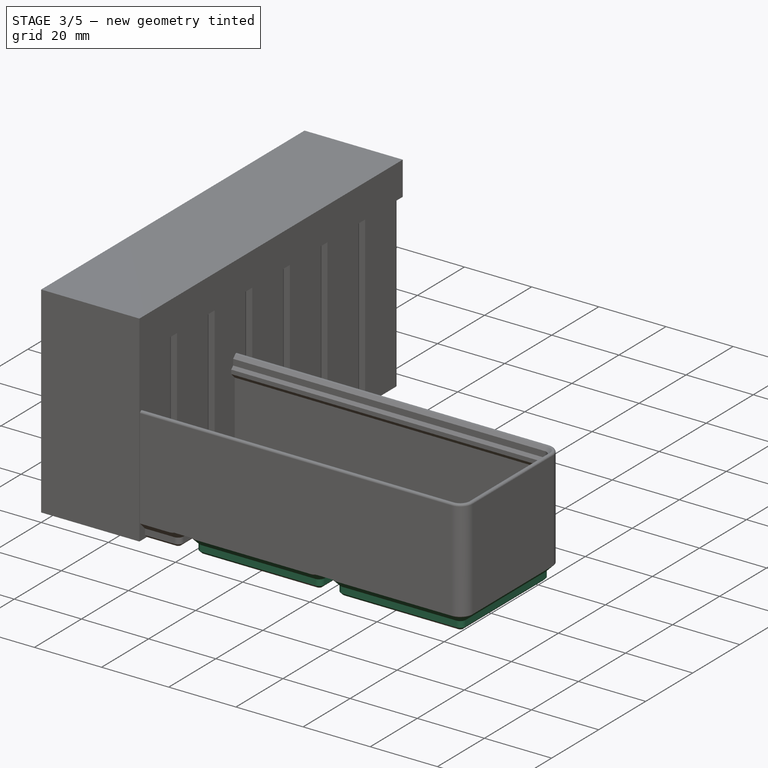
[diagram: stage 3 of 5 — iso view after this stage's code; geometry added in this stage tinted green]
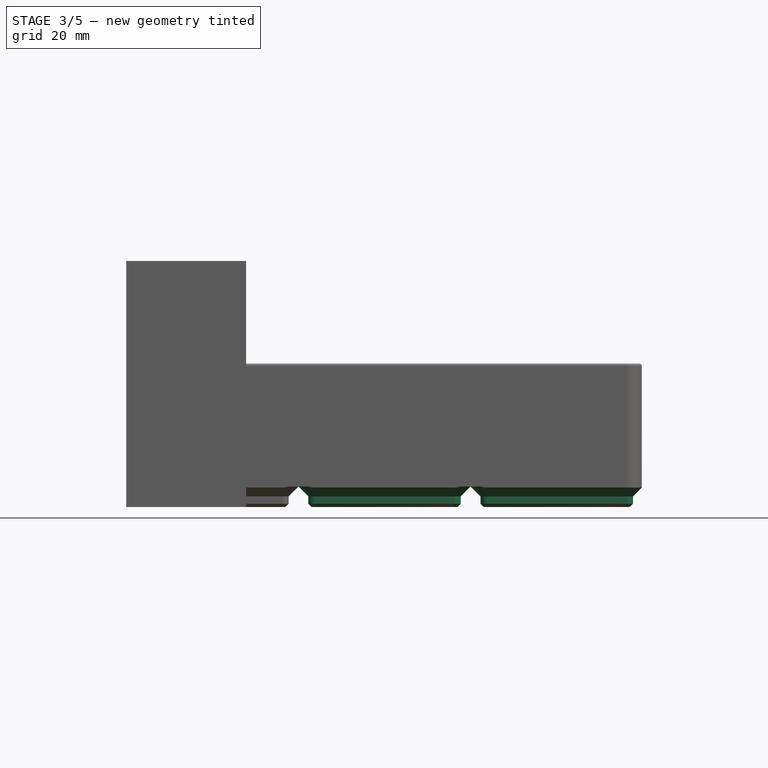
[diagram: stage 3 of 5 — front view after this stage's code; geometry added in this stage tinted green]
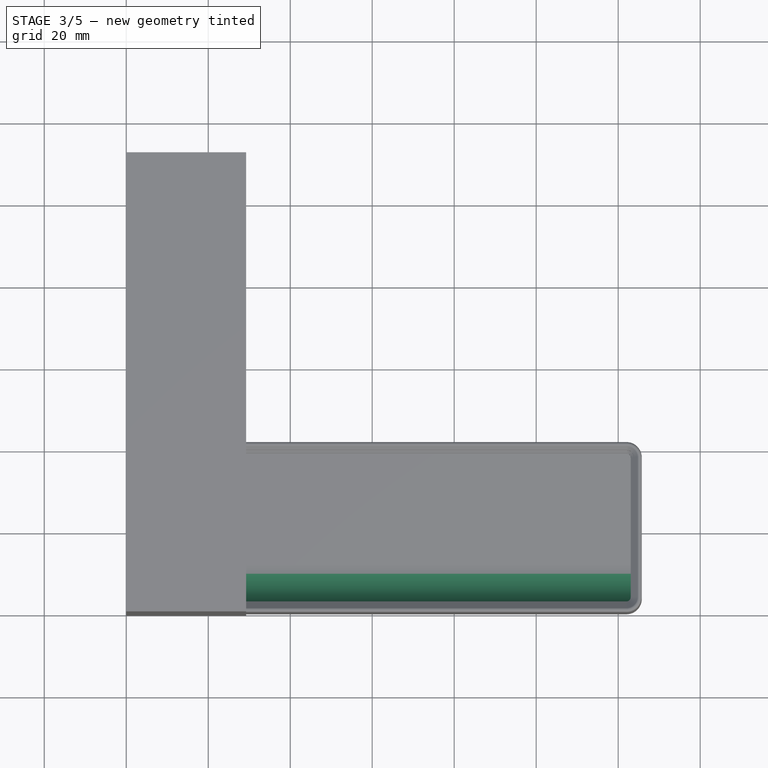
[diagram: stage 3 of 5 — top view after this stage's code; geometry added in this stage tinted green]
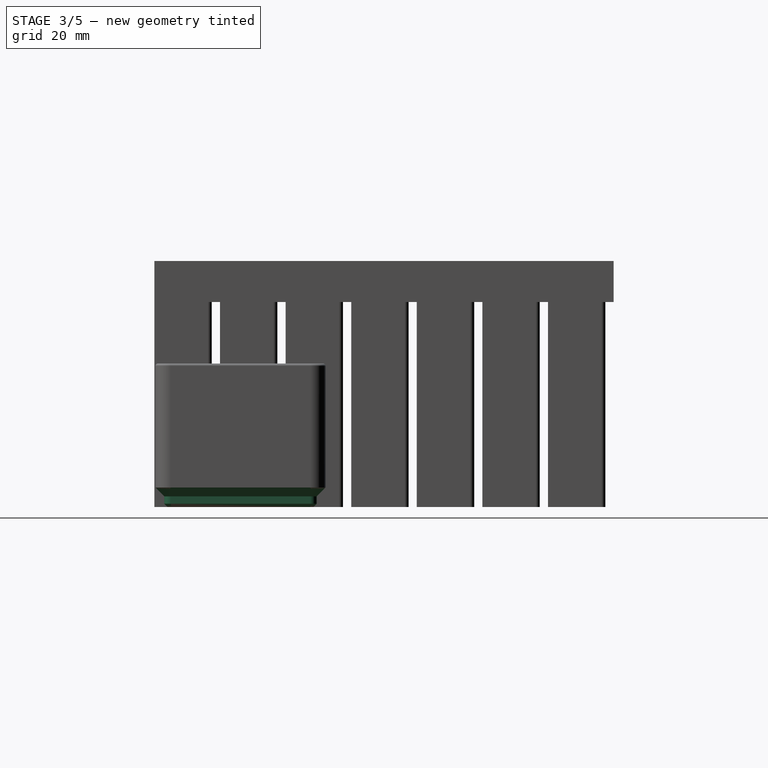
[diagram: stage 3 of 5 — right view after this stage's code; geometry added in this stage tinted green]
FEATURE [Sketcher::SketchObject] Sketch013  label="Sketch_base_magnets"
  FullyConstrained = true
  MapMode = 5
  Support = -> [XY_Plane001]
  expr: Constraints[21] = dd.ddMagnet_inset
  expr: Constraints[22] = dd.ddGrid_size
  expr: Constraints[23] = dd.ddGrid_size
  expr: Constraints[31] = dd.ddMagnet_diameter
  sketch-geometry (14):
    g0: ArcOfCircle CenterX=8 CenterY=8 CenterZ=0 NormalX=0 NormalY=0 NormalZ=1 AngleXU=0 Radius=8 StartAngle=3.14159 EndAngle=4.71239
    g1: LineSegment StartX=-1.8e-15 StartY=8 StartZ=0 EndX=-1.8e-15 EndY=34 EndZ=0
    g2: ArcOfCircle CenterX=8 CenterY=34 CenterZ=0 NormalX=0 NormalY=0 NormalZ=1 AngleXU=0 Radius=8 StartAngle=1.5708 EndAngle=3.14159
    g3: LineSegment StartX=8 StartY=42 StartZ=0 EndX=34 EndY=42 EndZ=0
    g4: ArcOfCircle CenterX=34 CenterY=34 CenterZ=0 NormalX=0 NormalY=0 NormalZ=1 AngleXU=0 Radius=8 StartAngle=0 EndAngle=1.5708
    g5: LineSegment StartX=42 StartY=34 StartZ=0 EndX=42 EndY=8 EndZ=0
    g6: ArcOfCircle CenterX=34 CenterY=8 CenterZ=0 NormalX=0 NormalY=0 NormalZ=1 AngleXU=0 Radius=8 StartAngle=4.71239 EndAngle=6.28319
    g7: LineSegment StartX=34 StartY=-1.8e-15 StartZ=0 EndX=8 EndY=-1.8e-15 EndZ=0
    g8: GeomPoint X=0 Y=0 Z=0
    g9: GeomPoint X=42 Y=42 Z=0
    g10: Circle CenterX=8 CenterY=34 CenterZ=0 NormalX=0 NormalY=0 NormalZ=1 AngleXU=0 Radius=3.25
    g11: Circle CenterX=34 CenterY=34 CenterZ=0 NormalX=0 NormalY=0 NormalZ=1 AngleXU=0 Radius=3.25
    g12: Circle CenterX=8 CenterY=8 CenterZ=0 NormalX=0 NormalY=0 NormalZ=1 AngleXU=0 Radius=3.25
    g13: Circle CenterX=34 CenterY=8 CenterZ=0 NormalX=0 NormalY=0 NormalZ=1 AngleXU=0 Radius=3.25
  constraints (32):
    c: Tangent(g0,g1) = 1.5708
    c: Tangent(g1,g2) = 1.5708
    c: Tangent(g2,g3) = 1.5708
    c: Tangent(g3,g4) = 1.5708
    c: Tangent(g4,g5) = 1.5708
    c: Tangent(g5,g6) = 1.5708
    c: Tangent(g6,g7) = 1.5708
    c: Tangent(g7,g0) = 1.5708
    c: Horizontal(g3)
    c: Horizontal(g7)
    c: Vertical(g1)
    c: Vertical(g5)
    c: Equal(g0,g2)
    c: Equal(g2,g4)
    c: Equal(g4,g6)
    c: PointOnObject(g8,g1)
    c: PointOnObject(g8,g7)
    c: PointOnObject(g9,g3)
    c: PointOnObject(g9,g5)
    c: PointOnObject(g0,g-2)
    c: PointOnObject(g0,g-1)
    c: DistanceX(g8,g0) = 8
    c: DistanceX(g0,g5) = 42
    c: DistanceY(g0,g2) = 42
    c: Coincident(g10,g2)
    c: Coincident(g11,g4)
    c: Coincident(g12,g0)
    c: Coincident(g13,g6)
    c: Equal(g12,g10)
    c: Equal(g12,g11)
    c: Equal(g12,g13)
    c: Diameter(g12) = 6.5
FEATURE [PartDesign::Hole] Hole  label="Hole_base_magnets"
  BaseFeature = -> SubtractiveLoft001
  CustomThreadClearance = 0
  Depth = 2.4
  DepthType = 0
  Diameter = 6.5
  DrillForDepth = false
  DrillPoint = 0
  DrillPointAngle = 118
  HoleCutCountersinkAngle = 90
  HoleCutCustomValues = false
  HoleCutDepth = 0
  HoleCutDiameter = 0
  HoleCutType = 0
  ModelThread = false
  Placement = pos=(0,0,0) rot=(0.57735,0.57735,0.57735;2.0944rad)
  Profile = -> Sketch013
  Refine = true
  Reversed = true
  Tapered = false
  TaperedAngle = 90
  ThreadClass = 0
  ThreadDepth = 2.4
  ThreadDepthType = 0
  ThreadDirection = 0
  ThreadFit = 0
  ThreadSize = 0
  ThreadType = 0
  Threaded = false
  UseCustomThreadClearance = false
  expr: Depth = dd.ddMagnet_thickness
  expr: Diameter = dd.ddMagnet_diameter
FEATURE [Sketcher::SketchObject] Sketch014  label="Sketch_base_screw_holes"
  AttachmentOffset = pos=(0,0,2.4) rot=(0,0,1;0rad)
  FullyConstrained = true
  MapMode = 5
  Placement = pos=(0,0,2.4) rot=(0,0,1;0rad)
  Support = -> [XY_Plane001]
  expr: .AttachmentOffset.Base.z = dd.ddMagnet_thickness
  expr: Constraints[21] = Sketch013.Constraints[21]
  expr: Constraints[22] = Sketch013.Constraints[22]
  expr: Constraints[23] = Sketch013.Constraints[23]
  expr: Constraints[31] = dd.ddBase_screw_diameter
  sketch-geometry (14):
    g0: ArcOfCircle CenterX=8 CenterY=8 CenterZ=0 NormalX=0 NormalY=0 NormalZ=1 AngleXU=0 Radius=8 StartAngle=3.14159 EndAngle=4.71239
    g1: LineSegment StartX=-1.8e-15 StartY=8 StartZ=0 EndX=-1.8e-15 EndY=34 EndZ=0
    g2: ArcOfCircle CenterX=8 CenterY=34 CenterZ=0 NormalX=0 NormalY=0 NormalZ=1 AngleXU=0 Radius=8 StartAngle=1.5708 EndAngle=3.14159
    g3: LineSegment StartX=8 StartY=42 StartZ=0 EndX=34 EndY=42 EndZ=0
    g4: ArcOfCircle CenterX=34 CenterY=34 CenterZ=0 NormalX=0 NormalY=0 NormalZ=1 AngleXU=0 Radius=8 StartAngle=0 EndAngle=1.5708
    g5: LineSegment StartX=42 StartY=34 StartZ=0 EndX=42 EndY=8 EndZ=0
    g6: ArcOfCircle CenterX=34 CenterY=8 CenterZ=0 NormalX=0 NormalY=0 NormalZ=1 AngleXU=0 Radius=8 StartAngle=4.71239 EndAngle=6.28319
    g7: LineSegment StartX=34 StartY=-1.8e-15 StartZ=0 EndX=8 EndY=-1.8e-15 EndZ=0
    g8: GeomPoint X=0 Y=0 Z=0
    g9: GeomPoint X=42 Y=42 Z=0
    g10: Circle CenterX=8 CenterY=34 CenterZ=0 NormalX=0 NormalY=0 NormalZ=1 AngleXU=0 Radius=1.5
    g11: Circle CenterX=34 CenterY=34 CenterZ=0 NormalX=0 NormalY=0 NormalZ=1 AngleXU=0 Radius=1.5
    g12: Circle CenterX=8 CenterY=8 CenterZ=0 NormalX=0 NormalY=0 NormalZ=1 AngleXU=0 Radius=1.5
    g13: Circle CenterX=34 CenterY=8 CenterZ=0 NormalX=0 NormalY=0 NormalZ=1 AngleXU=0 Radius=1.5
  constraints (32):
    c: Tangent(g0,g1) = 1.5708
    c: Tangent(g1,g2) = 1.5708
    c: Tangent(g2,g3) = 1.5708
    c: Tangent(g3,g4) = 1.5708
    c: Tangent(g4,g5) = 1.5708
    c: Tangent(g5,g6) = 1.5708
    c: Tangent(g6,g7) = 1.5708
    c: Tangent(g7,g0) = 1.5708
    c: Horizontal(g3)
    c: Horizontal(g7)
    c: Vertical(g1)
    c: Vertical(g5)
    c: Equal(g0,g2)
    c: Equal(g2,g4)
    c: Equal(g4,g6)
    c: PointOnObject(g8,g1)
    c: PointOnObject(g8,g7)
    c: PointOnObject(g9,g3)
    c: PointOnObject(g9,g5)
    c: PointOnObject(g0,g-2)
    c: PointOnObject(g0,g-1)
    c: DistanceX(g8,g0) = 8
    c: DistanceX(g0,g5) = 42
    c: DistanceY(g0,g2) = 42
    c: Coincident(g10,g2)
    c: Coincident(g11,g4)
    c: Coincident(g12,g0)
    c: Coincident(g13,g6)
    c: Equal(g12,g10)
    c: Equal(g12,g11)
    c: Equal(g12,g13)
    c: Diameter(g12) = 3
FEATURE [PartDesign::Hole] Hole001  label="Hole_base_screw_holes"
  BaseFeature = -> Hole
  CustomThreadClearance = 0
  Depth = 1e-06
  DepthType = 0
  Diameter = 3
  DrillForDepth = false
  DrillPoint = 0
  DrillPointAngle = 118
  HoleCutCountersinkAngle = 90
  HoleCutCustomValues = false
  HoleCutDepth = 0
  HoleCutDiameter = 6.1
  HoleCutType = 0
  ModelThread = false
  Placement = pos=(0,0,0) rot=(0.57735,0.57735,0.57735;2.0944rad)
  Profile = -> Sketch014
  Refine = true
  Reversed = true
  Tapered = false
  TaperedAngle = 90
  ThreadClass = 0
  ThreadDepth = 1e-06
  ThreadDepthType = 0
  ThreadDirection = 0
  ThreadFit = 0
  ThreadSize = 0
  ThreadType = 0
  Threaded = false
  UseCustomThreadClearance = false
  expr: Depth = dd.ddBase_screw_hole_depth
  expr: Diameter = dd.ddBase_screw_diameter
FEATURE [PartDesign::LinearPattern] LinearPattern002  label="LinearPattern_storage_grid_x"
  Direction = -> X_Axis001
  Length = 84
  Occurrences = 3
  Placement = pos=(0,0,0) rot=(0.57735,0.57735,0.57735;2.0944rad)
  Refine = true
  expr: Length = max(dd.ddTotal_width - dd.ddGrid_size; 1e-06 mm)
  expr: Occurrences = max(dd.ddColumns; 2)
FEATURE [PartDesign::LinearPattern] LinearPattern003  label="LinearPattern_storage_grid_y"
  Direction = -> Y_Axis001
  Length = 42
  Occurrences = 1
  Placement = pos=(0,0,0) rot=(0.57735,0.57735,0.57735;2.0944rad)
  Refine = true
  expr: Length = max(dd.ddTotal_length - dd.ddGrid_size; dd.ddGrid_size)
  expr: Occurrences = dd.ddRows
FEATURE [PartDesign::MultiTransform] MultiTransform001  label="MultiTransform_storage_grid"
  BaseFeature = -> Hole001
  Originals = -> [SubtractiveLoft001,Hole,Hole001]
  Placement = pos=(0,0,0) rot=(0.57735,0.57735,0.57735;2.0944rad)
  Refine = true
  Transformations = -> [LinearPattern002,LinearPattern003]
FEATURE [Sketcher::SketchObject] Sketch  label="Sketch_inner_scoop"
  AttachmentOffset = pos=(0,0,1.45) rot=(0,0,1;0rad)
  FullyConstrained = true
  MapMode = 5
  Placement = pos=(1.45,-3e-16,3e-16) rot=(0.57735,0.57735,0.57735;2.0944rad)
  Support = -> [YZ_Plane001]
  expr: .AttachmentOffset.Base.z = dd.ddClearance + dd.ddWall_thickness
  expr: Constraints[10] = Sketch005.Constraints[10]
  expr: Constraints[15] = Sketch005.Constraints[15]
  expr: Constraints[16] = Sketch005.Constraints[16]
  expr: Constraints[25] = Sketch005.Constraints[25]
  expr: Constraints[26] = Sketch005.Constraints[26]
  expr: Constraints[27] = Sketch005.Constraints[27]
  expr: Constraints[37] = Sketch005.Constraints[45]
  expr: Constraints[48] = dd.ddFrame_height + dd.ddWall_thickness
  expr: Constraints[57] = dd.ddInner_scoop_radius
  expr: Constraints[5] = Sketch005.Constraints[5]
  expr: Constraints[6] = Sketch005.Constraints[6]
  sketch-geometry (21):
    g0: LineSegment StartX=0.25 StartY=0 StartZ=0 EndX=0.25 EndY=34.4 EndZ=0
    g1: LineSegment StartX=0.25 StartY=34.4 StartZ=0 EndX=0.85 EndY=34.4 EndZ=0
    g2: LineSegment StartX=0.85 StartY=34.4 StartZ=0 EndX=1.27426 EndY=34.8243 EndZ=0
    g3: LineSegment StartX=1.27426 StartY=34.8243 StartZ=0 EndX=2.15 EndY=33.9485 EndZ=0
    g4: LineSegment StartX=2.15 StartY=33.9485 StartZ=0 EndX=0 EndY=36.0985 EndZ=0
    g5: LineSegment StartX=2.15 StartY=33.9485 StartZ=0 EndX=2.15 EndY=32.1485 EndZ=0
    g6: LineSegment StartX=2.15 StartY=32.1485 StartZ=0 EndX=2.95 EndY=31.3485 EndZ=0
    g7: LineSegment StartX=2.95 StartY=31.3485 StartZ=0 EndX=2.95 EndY=30.1485 EndZ=0
    g8: LineSegment StartX=2.95 StartY=30.1485 StartZ=0 EndX=1.45 EndY=28.6485 EndZ=0
    g9: LineSegment StartX=1.45 StartY=28.6485 StartZ=0 EndX=1.45 EndY=0 EndZ=0
    g10: LineSegment StartX=1.45 StartY=0 StartZ=0 EndX=0.25 EndY=0 EndZ=0
    g11: LineSegment StartX=0.85 StartY=34.4 StartZ=0 EndX=0.85 EndY=35 EndZ=0
    g12: ArcOfCircle CenterX=0.85 CenterY=34.4 CenterZ=0 NormalX=0 NormalY=0 NormalZ=1 AngleXU=0 Radius=0.6 StartAngle=1.5708 EndAngle=3.14159
    g13: ArcOfCircle CenterX=0.85 CenterY=34.4 CenterZ=0 NormalX=0 NormalY=0 NormalZ=1 AngleXU=0 Radius=0.6 StartAngle=0.785398 EndAngle=1.5708
    g14: LineSegment StartX=2.95 StartY=30.1485 StartZ=0 EndX=1.45 EndY=30.1485 EndZ=0
    g15: LineSegment StartX=1.45 StartY=30.1485 StartZ=0 EndX=1.45 EndY=6.2 EndZ=0
    g16: LineSegment StartX=1.45 StartY=6.2 StartZ=0 EndX=12.45 EndY=6.2 EndZ=0
    g17: LineSegment StartX=2.95 StartY=30.1485 StartZ=0 EndX=2.95 EndY=15.7 EndZ=0
    g18: LineSegment StartX=2.95 StartY=15.7 StartZ=0 EndX=12.45 EndY=15.7 EndZ=0
    g19: LineSegment StartX=12.45 StartY=15.7 StartZ=0 EndX=12.45 EndY=6.2 EndZ=0
    g20: ArcOfCircle CenterX=12.45 CenterY=15.7 CenterZ=0 NormalX=0 NormalY=0 NormalZ=1 AngleXU=0 Radius=9.5 StartAngle=3.14159 EndAngle=4.71239
  constraints (59):
    c: Vertical(g0)
    c: Coincident(g1,g0)
    c: Horizontal(g1)
    c: Coincident(g2,g1)
    c: Coincident(g3,g2)
    c: DistanceX(g-1,g0) = 0.25
    c: DistanceX(g-1,g3) = 2.15
    c: Coincident(g4,g3)
    c: PointOnObject(g4,g-2)
    c: PointOnObject(g2,g4)
    c: Angle(g-2,g4) = 0.785398
    c: Coincident(g5,g3)
    c: Vertical(g5)
    c: Coincident(g6,g5)
    c: Parallel(g4,g6)
    c: DistanceY(g6,g4) = 4.75
    c: DistanceX(g5,g6) = 0.8
    c: Coincident(g7,g6)
    c: Vertical(g7)
    c: Coincident(g8,g7)
    c: Coincident(g9,g8)
    c: Vertical(g9)
    c: Coincident(g10,g9)
    c: Horizontal(g10)
    c: Perpendicular(g8,g4)
    c: DistanceY(g7,g6) = 1.2
    c: DistanceX(g0,g9) = 1.2
    c: DistanceY(g-1,g11) = 35
    c: PointOnObject(g0,g-1)
    c: Vertical(g11)
    c: Coincident(g12,g1)
    c: Coincident(g12,g0)
    c: Coincident(g12,g11)
    c: Coincident(g13,g12)
    c: Coincident(g13,g12)
    c: Coincident(g13,g3)
    c: Coincident(g11,g12)
    c: Diameter(g12) = 1.2
    c: Coincident(g10,g0)
    c: Coincident(g14,g7)
    c: Horizontal(g14)
    c: Coincident(g15,g14)
    c: Vertical(g15)
    c: PointOnObject(g8,g15)
    c: Coincident(g16,g15)
    c: Horizontal(g16)
    c: Coincident(g17,g14)
    c: Vertical(g17)
    c: DistanceY(g-1,g16) = 6.2
    c: Coincident(g18,g17)
    c: Horizontal(g18)
    c: Coincident(g19,g18)
    c: Coincident(g19,g16)
    c: Vertical(g19)
    c: Coincident(g20,g18)
    c: Coincident(g20,g17)
    c: Coincident(g20,g16)
    c: Radius(g20) = 9.5
    c: Angle(g2,g11) = 0.785398
FEATURE [PartDesign::Pad] Pad  label="Pad_inner_scoop"
  BaseFeature = -> MultiTransform001
  Direction = (1,-2e-16,3e-16)
  Length = 123.1
  Length2 = 10
  Placement = pos=(0,0,0) rot=(0.57735,0.57735,0.57735;2.0944rad)
  Profile = -> Sketch
  ReferenceAxis = -> Sketch [N_Axis]
  Refine = true
  Type = 0
  expr: Length = dd.ddTotal_width - 2 * (dd.ddClearance + dd.ddWall_thickness)
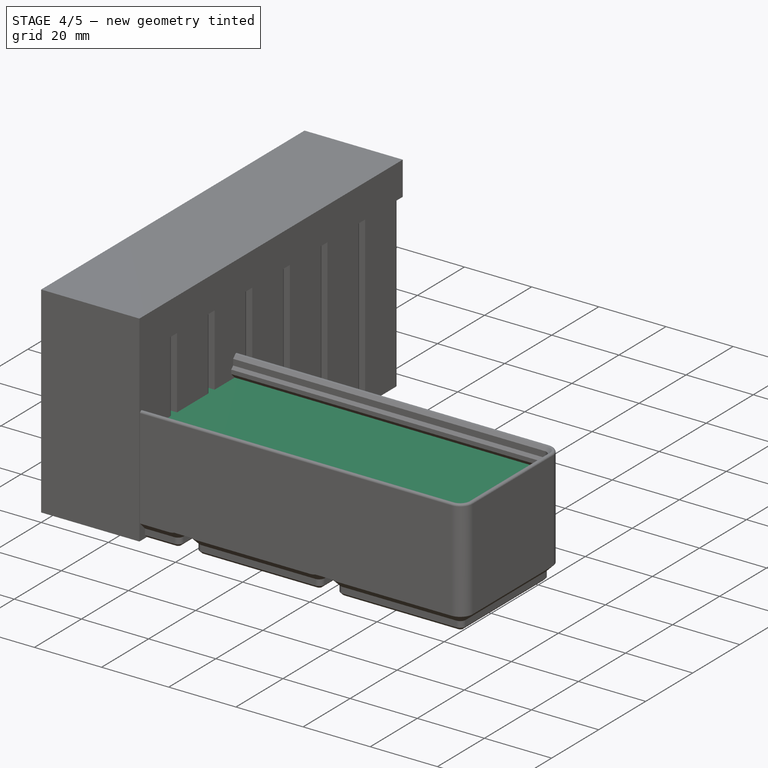
[diagram: stage 4 of 5 — iso view after this stage's code; geometry added in this stage tinted green]
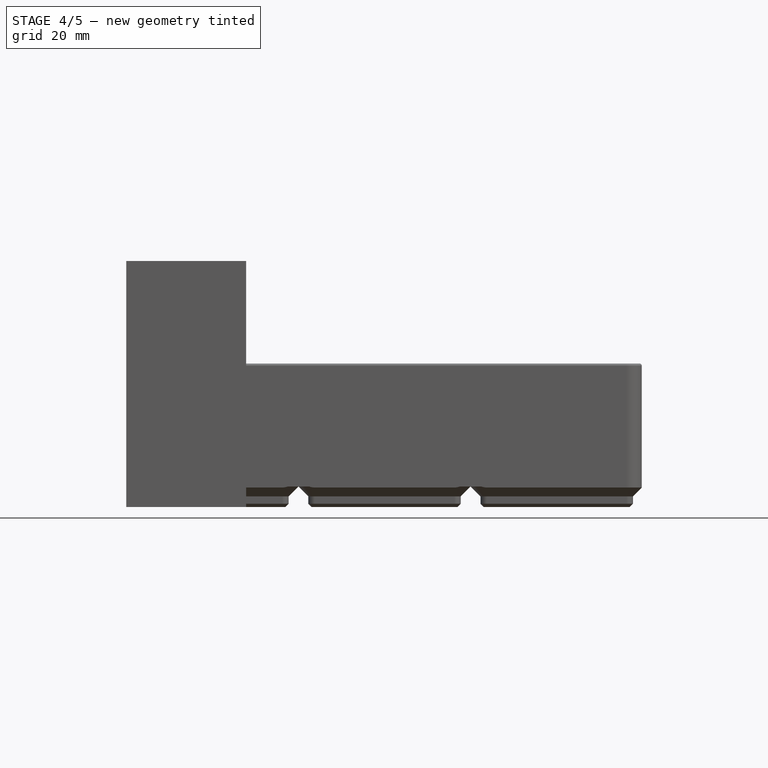
[diagram: stage 4 of 5 — front view after this stage's code; geometry added in this stage tinted green]
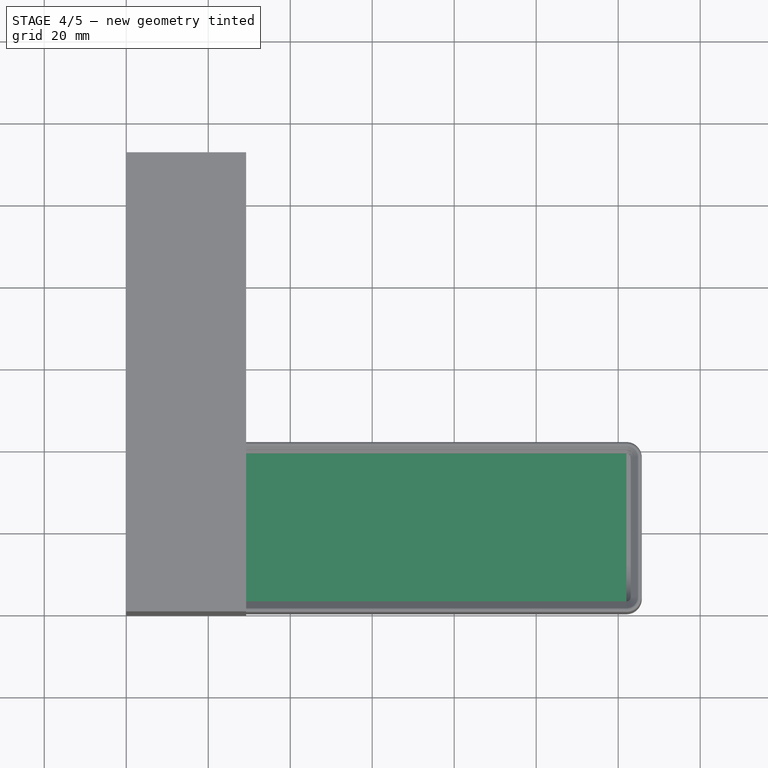
[diagram: stage 4 of 5 — top view after this stage's code; geometry added in this stage tinted green]
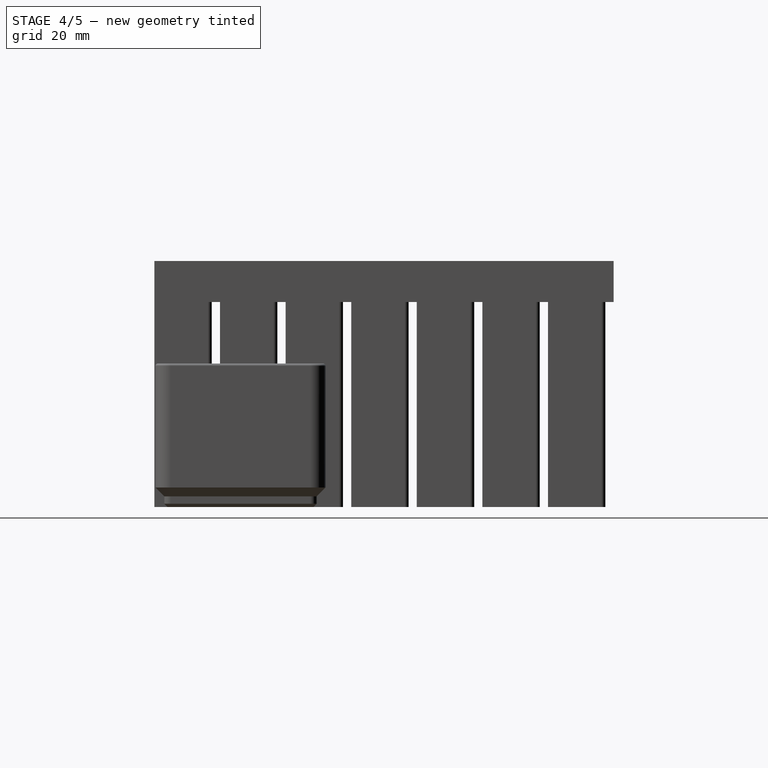
[diagram: stage 4 of 5 — right view after this stage's code; geometry added in this stage tinted green]
FEATURE [Sketcher::SketchObject] Sketch015  label="Sketch_divider"
  AttachmentOffset = pos=(0,0,0.25) rot=(0,0,1;0rad)
  FullyConstrained = true
  MapMode = 5
  Placement = pos=(0.25,-1e-16,1e-16) rot=(0.57735,0.57735,0.57735;2.0944rad)
  Support = -> [YZ_Plane001]
  expr: .AttachmentOffset.Base.z = dd.ddClearance
  expr: Constraints[10] = Sketch.Constraints[10]
  expr: Constraints[15] = Sketch.Constraints[15]
  expr: Constraints[16] = Sketch.Constraints[16]
  expr: Constraints[25] = Sketch.Constraints[25]
  expr: Constraints[26] = Sketch.Constraints[26]
  expr: Constraints[27] = Sketch.Constraints[27]
  expr: Constraints[37] = Sketch.Constraints[37]
  expr: Constraints[41] = Sketch.Constraints[48]
  expr: Constraints[46] = dd.ddTotal_length / 2
  expr: Constraints[5] = Sketch.Constraints[5]
  expr: Constraints[67] = dd.ddFrame_height + dd.ddClearance
  expr: Constraints[6] = Sketch.Constraints[6]
  sketch-geometry (25):
    g0: LineSegment StartX=0.25 StartY=0 StartZ=0 EndX=0.25 EndY=34.4 EndZ=0
    g1: LineSegment StartX=0.25 StartY=34.4 StartZ=0 EndX=0.85 EndY=34.4 EndZ=0
    g2: LineSegment StartX=0.85 StartY=34.4 StartZ=0 EndX=1.27426 EndY=34.8243 EndZ=0
    g3: LineSegment StartX=1.27426 StartY=34.8243 StartZ=0 EndX=2.15 EndY=33.9485 EndZ=0
    g4: LineSegment StartX=2.15 StartY=33.9485 StartZ=0 EndX=0 EndY=36.0985 EndZ=0
    g5: LineSegment StartX=2.15 StartY=33.9485 StartZ=0 EndX=2.15 EndY=32.1485 EndZ=0
    g6: LineSegment StartX=2.15 StartY=32.1485 StartZ=0 EndX=2.95 EndY=31.3485 EndZ=0
    g7: LineSegment StartX=2.95 StartY=31.3485 StartZ=0 EndX=2.95 EndY=30.1485 EndZ=0
    g8: LineSegment StartX=2.95 StartY=30.1485 StartZ=0 EndX=1.45 EndY=28.6485 EndZ=0
    g9: LineSegment StartX=1.45 StartY=28.6485 StartZ=0 EndX=1.45 EndY=0 EndZ=0
    g10: LineSegment StartX=1.45 StartY=0 StartZ=0 EndX=0.25 EndY=0 EndZ=0
    g11: LineSegment StartX=0.85 StartY=34.4 StartZ=0 EndX=0.85 EndY=35 EndZ=0
    g12: ArcOfCircle CenterX=0.85 CenterY=34.4 CenterZ=0 NormalX=0 NormalY=0 NormalZ=1 AngleXU=0 Radius=0.6 StartAngle=1.5708 EndAngle=3.14159
    g13: ArcOfCircle CenterX=0.85 CenterY=34.4 CenterZ=0 NormalX=0 NormalY=0 NormalZ=1 AngleXU=0 Radius=0.6 StartAngle=0.785398 EndAngle=1.5708
    g14: LineSegment StartX=1.45 StartY=31.3485 StartZ=0 EndX=1.45 EndY=6.2 EndZ=0
    g15: LineSegment StartX=0 StartY=0 StartZ=0 EndX=21 EndY=0 EndZ=0
    g16: LineSegment StartX=21 StartY=0 StartZ=0 EndX=21 EndY=35 EndZ=0
    g17: LineSegment StartX=0.85 StartY=35 StartZ=0 EndX=21 EndY=35 EndZ=0
    g18: LineSegment StartX=1.45 StartY=6.2 StartZ=0 EndX=40.55 EndY=6.2 EndZ=0
    g19: LineSegment StartX=40.55 StartY=6.2 StartZ=0 EndX=40.55 EndY=31.3485 EndZ=0
    g20: LineSegment StartX=40.55 StartY=31.3485 StartZ=0 EndX=39.05 EndY=31.3485 EndZ=0
    g21: LineSegment StartX=39.05 StartY=31.3485 StartZ=0 EndX=39.05 EndY=30.8485 EndZ=0
    g22: LineSegment StartX=2.95 StartY=30.8485 StartZ=0 EndX=39.05 EndY=30.8485 EndZ=0
    g23: LineSegment StartX=1.45 StartY=31.3485 StartZ=0 EndX=2.95 EndY=31.3485 EndZ=0
    g24: LineSegment StartX=2.95 StartY=31.3485 StartZ=0 EndX=2.95 EndY=30.8485 EndZ=0
  constraints (69):
    c: Vertical(g0)
    c: Coincident(g1,g0)
    c: Horizontal(g1)
    c: Coincident(g2,g1)
    c: Coincident(g3,g2)
    c: DistanceX(g-1,g0) = 0.25
    c: DistanceX(g-1,g3) = 2.15
    c: Coincident(g4,g3)
    c: PointOnObject(g4,g-2)
    c: PointOnObject(g2,g4)
    c: Angle(g-2,g4) = 0.785398
    c: Coincident(g5,g3)
    c: Vertical(g5)
    c: Coincident(g6,g5)
    c: Parallel(g4,g6)
    c: DistanceY(g6,g4) = 4.75
    c: DistanceX(g5,g6) = 0.8
    c: Coincident(g7,g6)
    c: Vertical(g7)
    c: Coincident(g8,g7)
    c: Coincident(g9,g8)
    c: Vertical(g9)
    c: Coincident(g10,g9)
    c: Horizontal(g10)
    c: Perpendicular(g8,g4)
    c: DistanceY(g7,g6) = 1.2
    c: DistanceX(g0,g9) = 1.2
    c: DistanceY(g-1,g11) = 35
    c: PointOnObject(g0,g-1)
    c: Vertical(g11)
    c: Coincident(g12,g1)
    c: Coincident(g12,g0)
    c: Coincident(g12,g11)
    c: Coincident(g13,g12)
    c: Coincident(g13,g12)
    c: Coincident(g13,g3)
    c: Coincident(g11,g12)
    c: Diameter(g12) = 1.2
    c: Coincident(g10,g0)
    c: Vertical(g14)
    c: PointOnObject(g8,g14)
    c: DistanceY(g-1,g18) = 6.2
    c: Coincident(g15,g-1)
    c: Horizontal(g15)
    c: Coincident(g16,g15)
    c: Vertical(g16)
    c: DistanceX(g15,g15) = 21
    c: Coincident(g17,g11)
    c: Horizontal(g17)
    c: Coincident(g17,g16)
    c: Symmetric(g14,g18,g16)
    c: Coincident(g19,g18)
    c: Vertical(g19)
    c: Coincident(g20,g19)
    c: Horizontal(g20)
    c: Coincident(g21,g20)
    c: Vertical(g21)
    c: Horizontal(g22)
    c: Coincident(g22,g21)
    c: Coincident(g18,g14)
    c: Coincident(g23,g14)
    c: Horizontal(g23)
    c: Coincident(g24,g23)
    c: Coincident(g24,g22)
    c: Vertical(g24)
    c: Symmetric(g23,g20,g16)
    c: Coincident(g23,g6)
    c: DistanceY(g22,g4) = 5.25
    c: Angle(g2,g11) = 0.785398
FEATURE [PartDesign::Pad] Pad002  label="Pad_divider"
  BaseFeature = -> Pad
  Direction = (1,-2e-16,3e-16)
  Length = 1.2
  Length2 = 10
  Placement = pos=(0,0,0) rot=(0.57735,0.57735,0.57735;2.0944rad)
  Profile = -> Sketch015
  ReferenceAxis = -> Sketch015 [N_Axis]
  Refine = true
  Type = 0
  expr: Length = dd.ddWall_thickness
FEATURE [PartDesign::LinearPattern] LinearPattern  label="LinearPattern_dividers"
  Direction = -> X_Axis001
  Length = 124.3
  Occurrences = 2
  Placement = pos=(0,0,0) rot=(0.57735,0.57735,0.57735;2.0944rad)
  Refine = true
  expr: Length = dd.ddTotal_width - dd.ddWall_thickness - 2 * dd.ddClearance
  expr: Occurrences = dd.ddTotal_dividers
FEATURE [PartDesign::MultiTransform] MultiTransform  label="MultiTransform_dividers"
  BaseFeature = -> Pad002
  Originals = -> [Pad002]
  Placement = pos=(0,0,0) rot=(0.57735,0.57735,0.57735;2.0944rad)
  Refine = true
  Transformations = -> [LinearPattern]
FEATURE [Sketcher::SketchObject] Sketch016  label="Sketch_label_tab_full_length"
  FullyConstrained = true
  MapMode = 5
  Placement = pos=(0,0,0) rot=(0.57735,0.57735,0.57735;2.0944rad)
  Support = -> [YZ_Plane001]
  expr: Constraints[10] = Sketch015.Constraints[10]
  expr: Constraints[15] = Sketch015.Constraints[15]
  expr: Constraints[16] = Sketch015.Constraints[16]
  expr: Constraints[25] = Sketch015.Constraints[25]
  expr: Constraints[26] = Sketch015.Constraints[26]
  expr: Constraints[27] = Sketch015.Constraints[27]
  expr: Constraints[37] = Sketch015.Constraints[37]
  expr: Constraints[41] = Sketch015.Constraints[41]
  expr: Constraints[46] = Sketch015.Constraints[46]
  expr: Constraints[5] = Sketch015.Constraints[5]
  expr: Constraints[67] = Sketch015.Constraints[67]
  expr: Constraints[68] = Sketch015.Constraints[68]
  expr: Constraints[6] = Sketch015.Constraints[6]
  expr: Constraints[75] = dd.ddTab_angle
  expr: Constraints[76] = dd.ddWall_thickness
  expr: Constraints[77] = dd.ddLabel_width + dd.ddClearance
  sketch-geometry (29):
    g0: LineSegment StartX=0.25 StartY=0 StartZ=0 EndX=0.25 EndY=34.4 EndZ=0
    g1: LineSegment StartX=0.25 StartY=34.4 StartZ=0 EndX=0.85 EndY=34.4 EndZ=0
    g2: LineSegment StartX=0.85 StartY=34.4 StartZ=0 EndX=1.27426 EndY=34.8243 EndZ=0
    g3: LineSegment StartX=1.27426 StartY=34.8243 StartZ=0 EndX=2.15 EndY=33.9485 EndZ=0
    g4: LineSegment StartX=2.15 StartY=33.9485 StartZ=0 EndX=0 EndY=36.0985 EndZ=0
    g5: LineSegment StartX=2.15 StartY=33.9485 StartZ=0 EndX=2.15 EndY=32.1485 EndZ=0
    g6: LineSegment StartX=2.15 StartY=32.1485 StartZ=0 EndX=2.95 EndY=31.3485 EndZ=0
    g7: LineSegment StartX=2.95 StartY=31.3485 StartZ=0 EndX=2.95 EndY=30.1485 EndZ=0
    g8: LineSegment StartX=2.95 StartY=30.1485 StartZ=0 EndX=1.45 EndY=28.6485 EndZ=0
    g9: LineSegment StartX=1.45 StartY=28.6485 StartZ=0 EndX=1.45 EndY=0 EndZ=0
    g10: LineSegment StartX=1.45 StartY=0 StartZ=0 EndX=0.25 EndY=0 EndZ=0
    g11: LineSegment StartX=0.85 StartY=34.4 StartZ=0 EndX=0.85 EndY=35 EndZ=0
    g12: ArcOfCircle CenterX=0.85 CenterY=34.4 CenterZ=0 NormalX=0 NormalY=0 NormalZ=1 AngleXU=0 Radius=0.6 StartAngle=1.5708 EndAngle=3.14159
    g13: ArcOfCircle CenterX=0.85 CenterY=34.4 CenterZ=0 NormalX=0 NormalY=0 NormalZ=1 AngleXU=0 Radius=0.6 StartAngle=0.785398 EndAngle=1.5708
    g14: LineSegment StartX=1.45 StartY=31.3485 StartZ=0 EndX=1.45 EndY=6.2 EndZ=0
    g15: LineSegment StartX=0 StartY=0 StartZ=0 EndX=21 EndY=0 EndZ=0
    g16: LineSegment StartX=21 StartY=0 StartZ=0 EndX=21 EndY=35 EndZ=0
    g17: LineSegment StartX=0.85 StartY=35 StartZ=0 EndX=21 EndY=35 EndZ=0
    g18: LineSegment StartX=1.45 StartY=6.2 StartZ=0 EndX=40.55 EndY=6.2 EndZ=0
    g19: LineSegment StartX=40.55 StartY=6.2 StartZ=0 EndX=40.55 EndY=31.3485 EndZ=0
    g20: LineSegment StartX=40.55 StartY=31.3485 StartZ=0 EndX=39.05 EndY=31.3485 EndZ=0
    g21: LineSegment StartX=39.05 StartY=31.3485 StartZ=0 EndX=39.05 EndY=30.8485 EndZ=0
    g22: LineSegment StartX=2.95 StartY=30.8485 StartZ=0 EndX=39.05 EndY=30.8485 EndZ=0
    g23: LineSegment StartX=1.45 StartY=31.3485 StartZ=0 EndX=2.95 EndY=31.3485 EndZ=0
    g24: LineSegment StartX=2.95 StartY=31.3485 StartZ=0 EndX=2.95 EndY=30.8485 EndZ=0
    g25: LineSegment StartX=26.8 StartY=30.8485 StartZ=0 EndX=40.55 EndY=30.8485 EndZ=0
    g26: LineSegment StartX=26.4559 StartY=29.757 StartZ=0 EndX=40.55 EndY=19.8882 EndZ=0
    g27: ArcOfCircle CenterX=26.8 CenterY=30.2485 CenterZ=0 NormalX=0 NormalY=0 NormalZ=1 AngleXU=0 Radius=0.6 StartAngle=1.5708 EndAngle=4.10152
    g28: LineSegment StartX=40.55 StartY=30.8485 StartZ=0 EndX=40.55 EndY=19.8882 EndZ=0
  constraints (80):
    c: Vertical(g0)
    c: Coincident(g1,g0)
    c: Horizontal(g1)
    c: Coincident(g2,g1)
    c: Coincident(g3,g2)
    c: DistanceX(g-1,g0) = 0.25
    c: DistanceX(g-1,g3) = 2.15
    c: Coincident(g4,g3)
    c: PointOnObject(g4,g-2)
    c: PointOnObject(g2,g4)
    c: Angle(g-2,g4) = 0.785398
    c: Coincident(g5,g3)
    c: Vertical(g5)
    c: Coincident(g6,g5)
    c: Parallel(g4,g6)
    c: DistanceY(g6,g4) = 4.75
    c: DistanceX(g5,g6) = 0.8
    c: Coincident(g7,g6)
    c: Vertical(g7)
    c: Coincident(g8,g7)
    c: Coincident(g9,g8)
    c: Vertical(g9)
    c: Coincident(g10,g9)
    c: Horizontal(g10)
    c: Perpendicular(g8,g4)
    c: DistanceY(g7,g6) = 1.2
    c: DistanceX(g0,g9) = 1.2
    c: DistanceY(g-1,g11) = 35
    c: PointOnObject(g0,g-1)
    c: Vertical(g11)
    c: Coincident(g12,g1)
    c: Coincident(g12,g0)
    c: Coincident(g12,g11)
    c: Coincident(g13,g12)
    c: Coincident(g13,g12)
    c: Coincident(g13,g3)
    c: Coincident(g11,g12)
    c: Diameter(g12) = 1.2
    c: Coincident(g10,g0)
    c: Vertical(g14)
    c: PointOnObject(g8,g14)
    c: DistanceY(g-1,g18) = 6.2
    c: Coincident(g15,g-1)
    c: Horizontal(g15)
    c: Coincident(g16,g15)
    c: Vertical(g16)
    c: DistanceX(g15,g15) = 21
    c: Coincident(g17,g11)
    c: Horizontal(g17)
    c: Coincident(g17,g16)
    c: Symmetric(g14,g18,g16)
    c: Coincident(g19,g18)
    c: Vertical(g19)
    c: Coincident(g20,g19)
    c: Horizontal(g20)
    c: Coincident(g21,g20)
    c: Vertical(g21)
    c: Horizontal(g22)
    c: Coincident(g22,g21)
    c: Coincident(g18,g14)
    c: Coincident(g23,g14)
    c: Horizontal(g23)
    c: Coincident(g24,g23)
    c: Coincident(g24,g22)
    c: Vertical(g24)
    c: Symmetric(g23,g20,g16)
    c: Coincident(g23,g6)
    c: DistanceY(g22,g4) = 5.25
    c: Angle(g2,g11) = 0.785398
    c: PointOnObject(g25,g19)
    c: Horizontal(g25)
    c: PointOnObject(g26,g19)
    c: Tangent(g25,g27) = 1.5708
    c: Tangent(g26,g27) = -1.5708
    c: PointOnObject(g25,g22)
    c: Angle(g26,g25) = 0.610865
    c: Diameter(g27) = 1.2
    c: DistanceX(g25,g21) = 12.25
    c: Coincident(g28,g25)
    c: Coincident(g28,g26)
FEATURE [PartDesign::Pad] Pad003  label="Pad_label_tab_full_length"
  BaseFeature = -> MultiTransform
  Direction = (1,-2e-16,3e-16)
  Length = 1.2
  Length2 = 10
  Placement = pos=(0,0,0) rot=(0.57735,0.57735,0.57735;2.0944rad)
  Profile = -> Sketch016
  ReferenceAxis = -> Sketch016 [N_Axis]
  Refine = true
  Type = 0
  expr: Length = max(dd.ddLabel_full_length * dd.ddTotal_width; dd.ddWall_thickness)
FEATURE [Sketcher::SketchObject] Sketch017
  FullyConstrained = true
  MapMode = 5
  Support = -> [XY_Plane001]
  expr: Constraints[19] = dd.ddClearance
  expr: Constraints[20] = dd.ddClearance
  expr: Constraints[21] = dd.ddTotal_width - dd.ddClearance
  expr: Constraints[22] = dd.ddTotal_length - dd.ddClearance
  expr: Constraints[23] = dd.ddCorner_fillet - dd.ddClearance
  expr: Constraints[33] = dd.ddTotal_width
  expr: Constraints[34] = dd.ddTotal_length
  sketch-geometry (14):
    g0: ArcOfCircle CenterX=4 CenterY=4 CenterZ=0 NormalX=0 NormalY=0 NormalZ=1 AngleXU=0 Radius=3.75 StartAngle=3.14159 EndAngle=4.71239
    g1: LineSegment StartX=0.25 StartY=4 StartZ=0 EndX=0.25 EndY=38 EndZ=0
    g2: ArcOfCircle CenterX=4 CenterY=38 CenterZ=0 NormalX=0 NormalY=0 NormalZ=1 AngleXU=0 Radius=3.75 StartAngle=1.5708 EndAngle=3.14159
    g3: LineSegment StartX=4 StartY=41.75 StartZ=0 EndX=122 EndY=41.75 EndZ=0
    g4: ArcOfCircle CenterX=122 CenterY=38 CenterZ=0 NormalX=0 NormalY=0 NormalZ=1 AngleXU=0 Radius=3.75 StartAngle=1.1e-15 EndAngle=1.5708
    g5: LineSegment StartX=125.75 StartY=38 StartZ=0 EndX=125.75 EndY=4 EndZ=0
    g6: ArcOfCircle CenterX=122 CenterY=4 CenterZ=0 NormalX=0 NormalY=0 NormalZ=1 AngleXU=0 Radius=3.75 StartAngle=4.71239 EndAngle=6.28319
    g7: LineSegment StartX=122 StartY=0.25 StartZ=0 EndX=4 EndY=0.25 EndZ=0
    g8: GeomPoint X=0.25 Y=0.25 Z=0
    g9: GeomPoint X=125.75 Y=41.75 Z=0
    g10: LineSegment StartX=0 StartY=0 StartZ=0 EndX=126 EndY=0 EndZ=0
    g11: LineSegment StartX=126 StartY=0 StartZ=0 EndX=126 EndY=42 EndZ=0
    g12: LineSegment StartX=126 StartY=42 StartZ=0 EndX=0 EndY=42 EndZ=0
    g13: LineSegment StartX=0 StartY=42 StartZ=0 EndX=0 EndY=0 EndZ=0
  constraints (35):
    c: Tangent(g0,g1) = 1.5708
    c: Tangent(g1,g2) = 1.5708
    c: Tangent(g2,g3) = 1.5708
    c: Tangent(g3,g4) = 1.5708
    c: Tangent(g4,g5) = 1.5708
    c: Tangent(g5,g6) = 1.5708
    c: Tangent(g6,g7) = 1.5708
    c: Tangent(g7,g0) = 1.5708
    c: Horizontal(g3)
    c: Horizontal(g7)
    c: Vertical(g1)
    c: Vertical(g5)
    c: Equal(g0,g2)
    c: Equal(g2,g4)
    c: Equal(g4,g6)
    c: PointOnObject(g8,g1)
    c: PointOnObject(g8,g7)
    c: PointOnObject(g9,g3)
    c: PointOnObject(g9,g5)
    c: DistanceX(g-1,g8) = 0.25
    c: DistanceY(g-1,g8) = 0.25
    c: DistanceX(g-1,g9) = 125.75
    c: DistanceY(g-1,g9) = 41.75
    c: Radius(g0) = 3.75
    c: Coincident(g10,g11)
    c: Coincident(g11,g12)
    c: Coincident(g12,g13)
    c: Coincident(g13,g10)
    c: Horizontal(g10)
    c: Horizontal(g12)
    c: Vertical(g11)
    c: Vertical(g13)
    c: Coincident(g10,g-1)
    c: DistanceX(g12,g12) = 126
    c: DistanceY(g11,g11) = 42
FEATURE [PartDesign::Pocket] Pocket001  label="Pocket_trim_outline"
  BaseFeature = -> Pad003
  Direction = (0,0,-1)
  Length = 5
  Length2 = 5
  Placement = pos=(0,0,0) rot=(0.57735,0.57735,0.57735;2.0944rad)
  Profile = -> Sketch017
  ReferenceAxis = -> Sketch017 [N_Axis]
  Refine = true
  Reversed = true
  Type = 1
FEATURE [PartDesign::Pad] Pad004
  BaseFeature = -> Pocket001
  Direction = (-2e-15,-1,9e-16)
  Length = 10
  Length2 = 10
  Placement = pos=(0,0,0) rot=(0.57735,0.57735,0.57735;2.0944rad)
  Profile = -> Pocket001 [Face178]
  Type = 3
  UpToFace = -> Pocket001 [Face132]
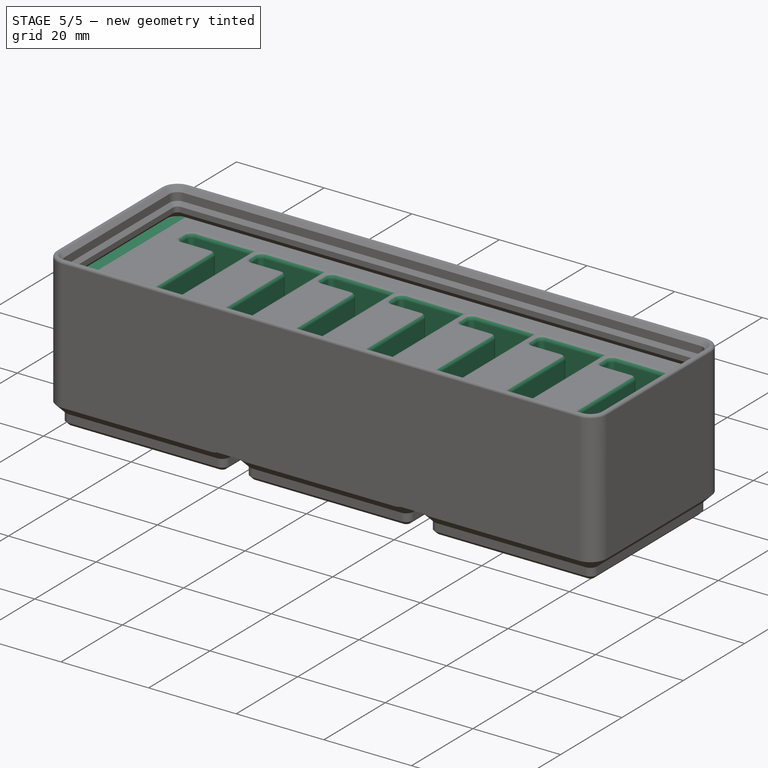
[diagram: stage 5 of 5 — iso view after this stage's code; geometry added in this stage tinted green]
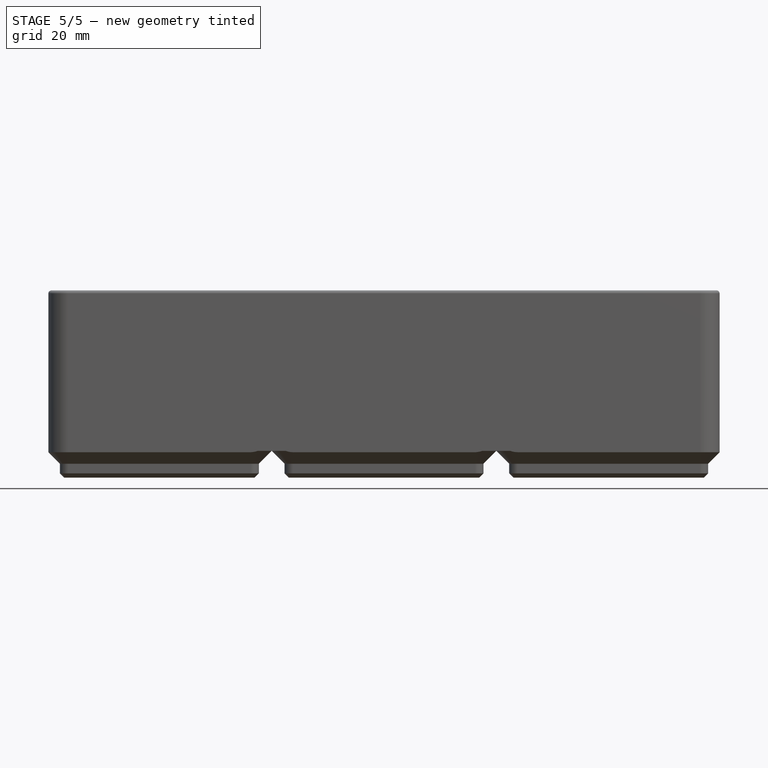
[diagram: stage 5 of 5 — front view after this stage's code; geometry added in this stage tinted green]
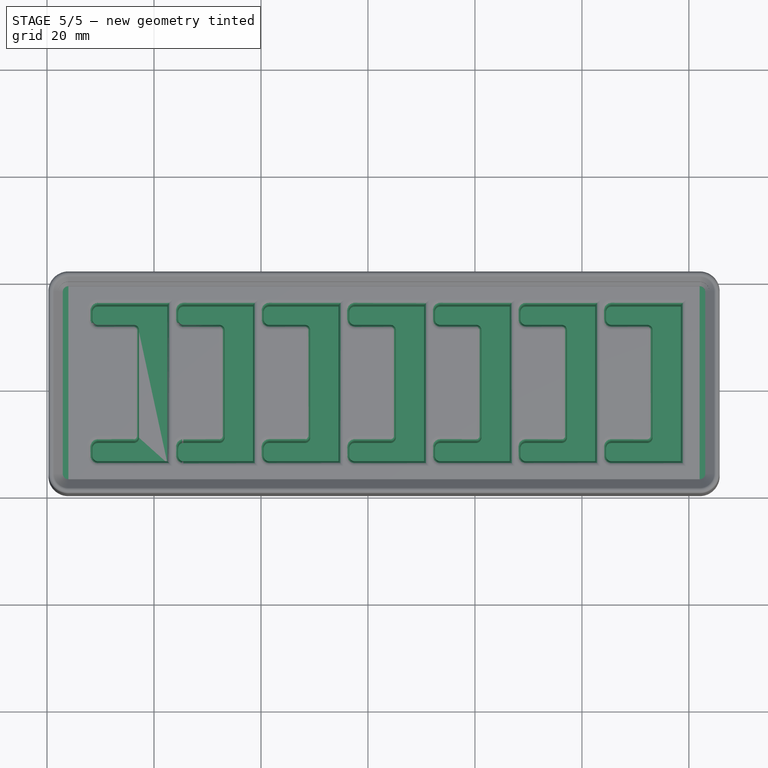
[diagram: stage 5 of 5 — top view after this stage's code; geometry added in this stage tinted green]
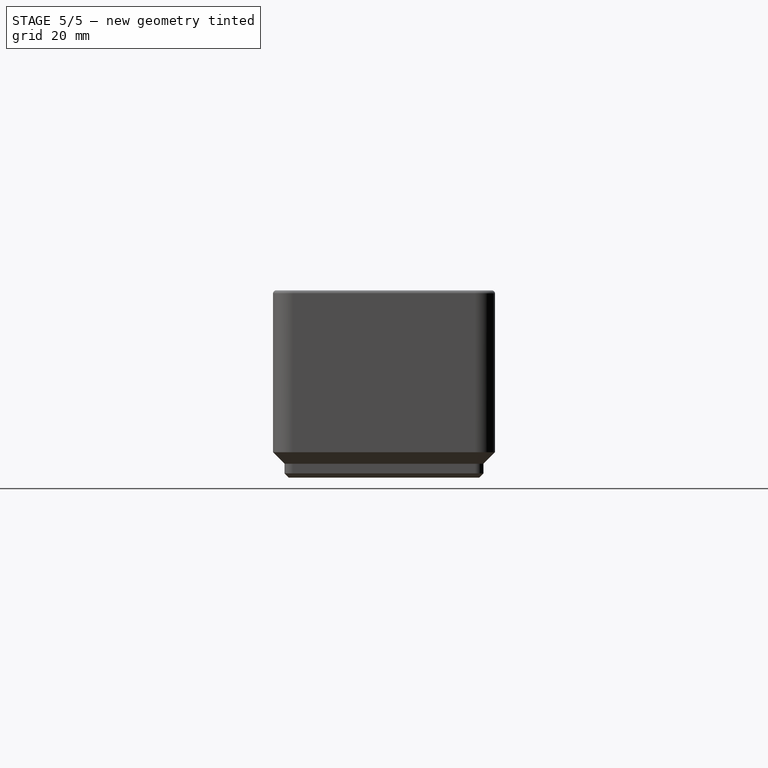
[diagram: stage 5 of 5 — right view after this stage's code; geometry added in this stage tinted green]
FEATURE [PartDesign::Pad] Pad005
  BaseFeature = -> Pad004
  Direction = (-1,2e-15,-3e-15)
  Length = 10
  Length2 = 10
  Placement = pos=(0,0,0) rot=(0.57735,0.57735,0.57735;2.0944rad)
  Profile = -> Pad004 [Face157]
  Type = 3
  UpToFace = -> Pad004 [Face177]
FEATURE [PartDesign::Pad] Pad006
  BaseFeature = -> Pad005
  Direction = (1,-2e-15,3.8e-15)
  Length = 10
  Length2 = 10
  Placement = pos=(0,0,0) rot=(0.57735,0.57735,0.57735;2.0944rad)
  Profile = -> Pad005 [Face157]
  Type = 3
  UpToFace = -> Pad005 [Face178]
FEATURE [PartDesign::Body] Body
  Group = -> [Sketch018,Pad007,Fillet,Sketch019,Pad008,Sketch020,Pad009,Fillet001]
  Origin = -> Origin
  Placement = pos=(118.5,6.375,8) rot=(0,0,1;1.5708rad)
  Tip = -> Fillet001
FEATURE [PartDesign::Boolean] Boolean
  BaseFeature = -> Pad006
  Group = -> [Body]
  Type = 1
FEATURE [PartDesign::Fillet] Fillet002
  Base = -> Boolean [Edge384,Edge377,Edge368,Edge361,Edge354,Edge347,Edge438,Edge431,Edge424,Edge417,Edge410,Edge403,Edge396,Edge389]
  BaseFeature = -> Boolean
  Radius = 0.9999
  SupportTransform = false
  UseAllEdges = false
FEATURE [PartDesign::Body] Body001  label="Divider Storage"
  Group = -> [Sketch005,Sketch006,AdditivePipe,DatumPlane,Sketch007,Pocket,Sketch008,Pad001,Sketch009,Sketch010,Sketch011,Sketch012,SubtractiveLoft001,Sketch013,Hole,Sketch014,Hole001,MultiTransform001,LinearPattern002,LinearPattern003,Sketch,Pad,Sketch015,Pad002,MultiTransform,LinearPattern,Sketch016,Pad003,Sketch017,Pocket001,Pad004,Pad005,Pad006,Boolean,Fillet002]
  Origin = -> Origin001
  Tip = -> Fillet002
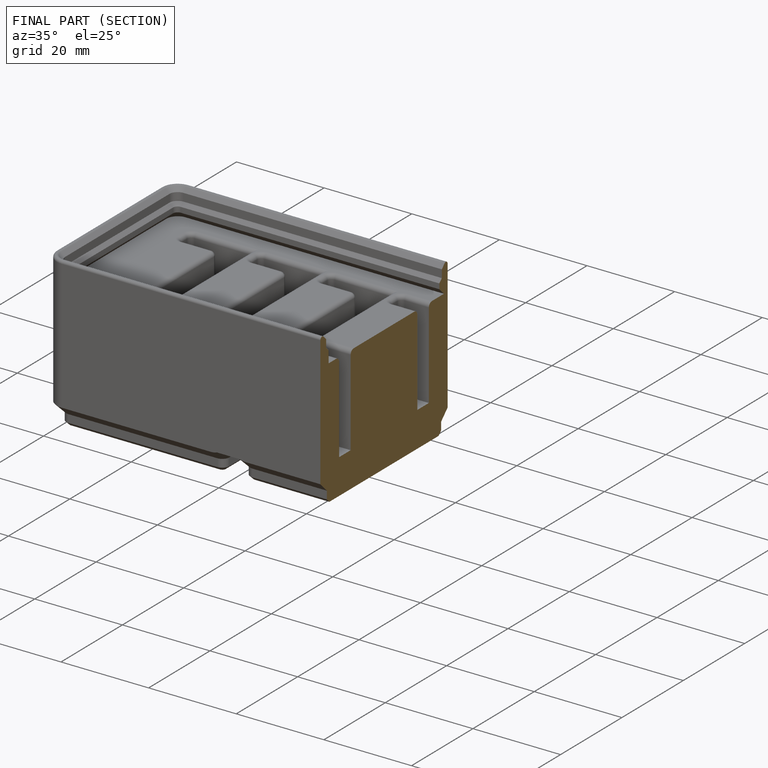
[diagram: finished part — half-section view (interior)]
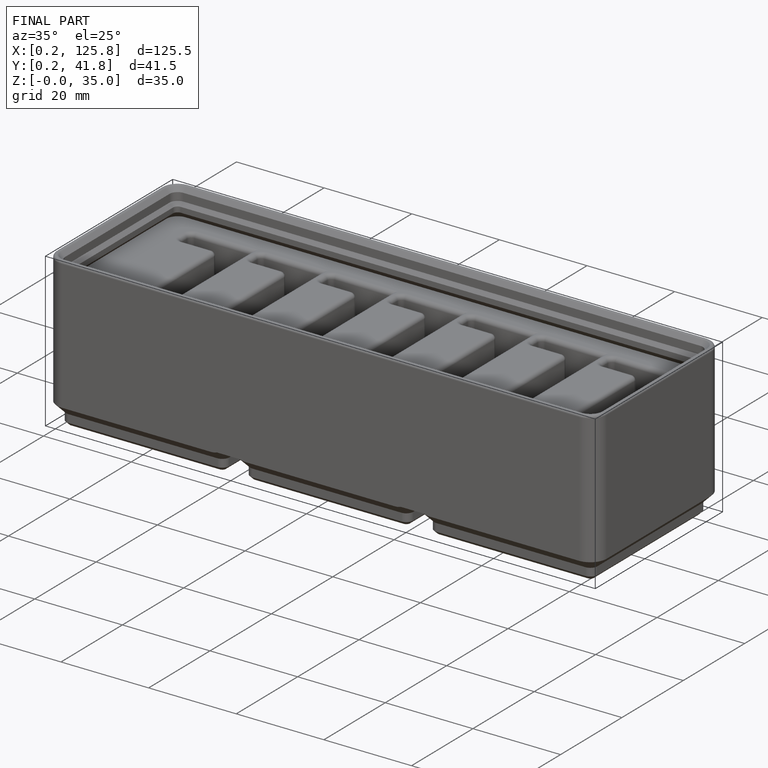
[diagram: finished part — iso view with bounding-box wireframe]
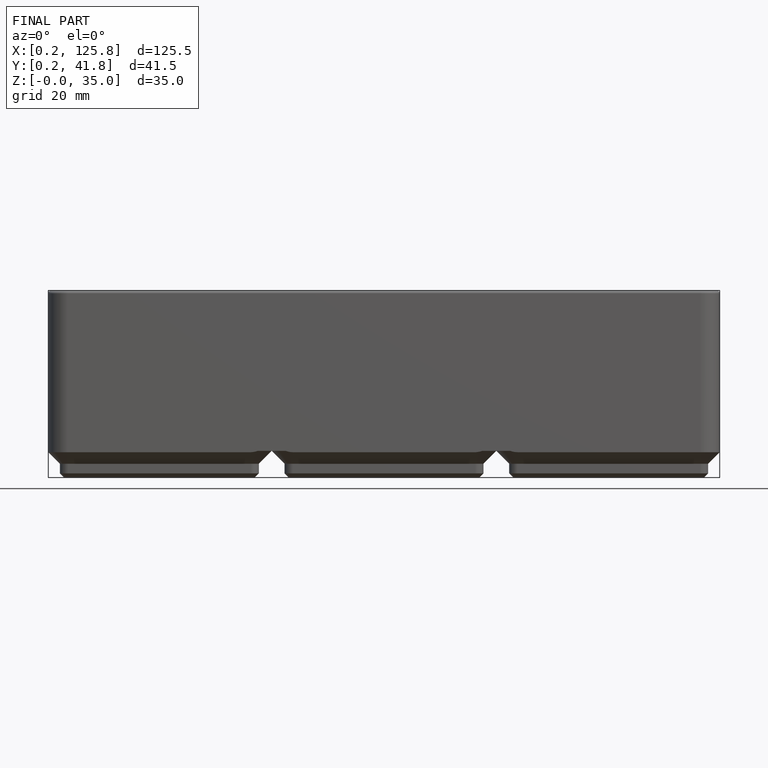
[diagram: finished part — front view with bounding-box wireframe]
